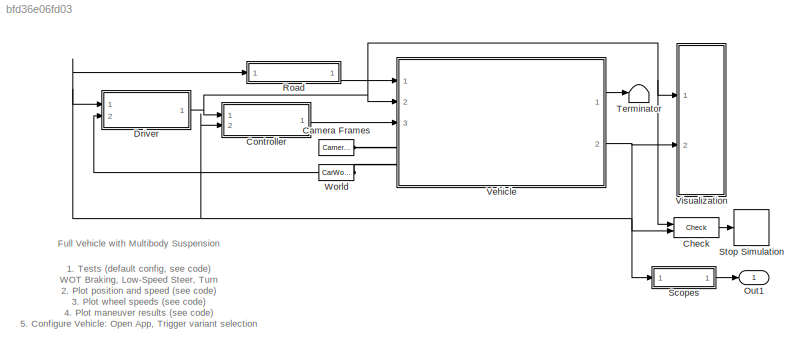
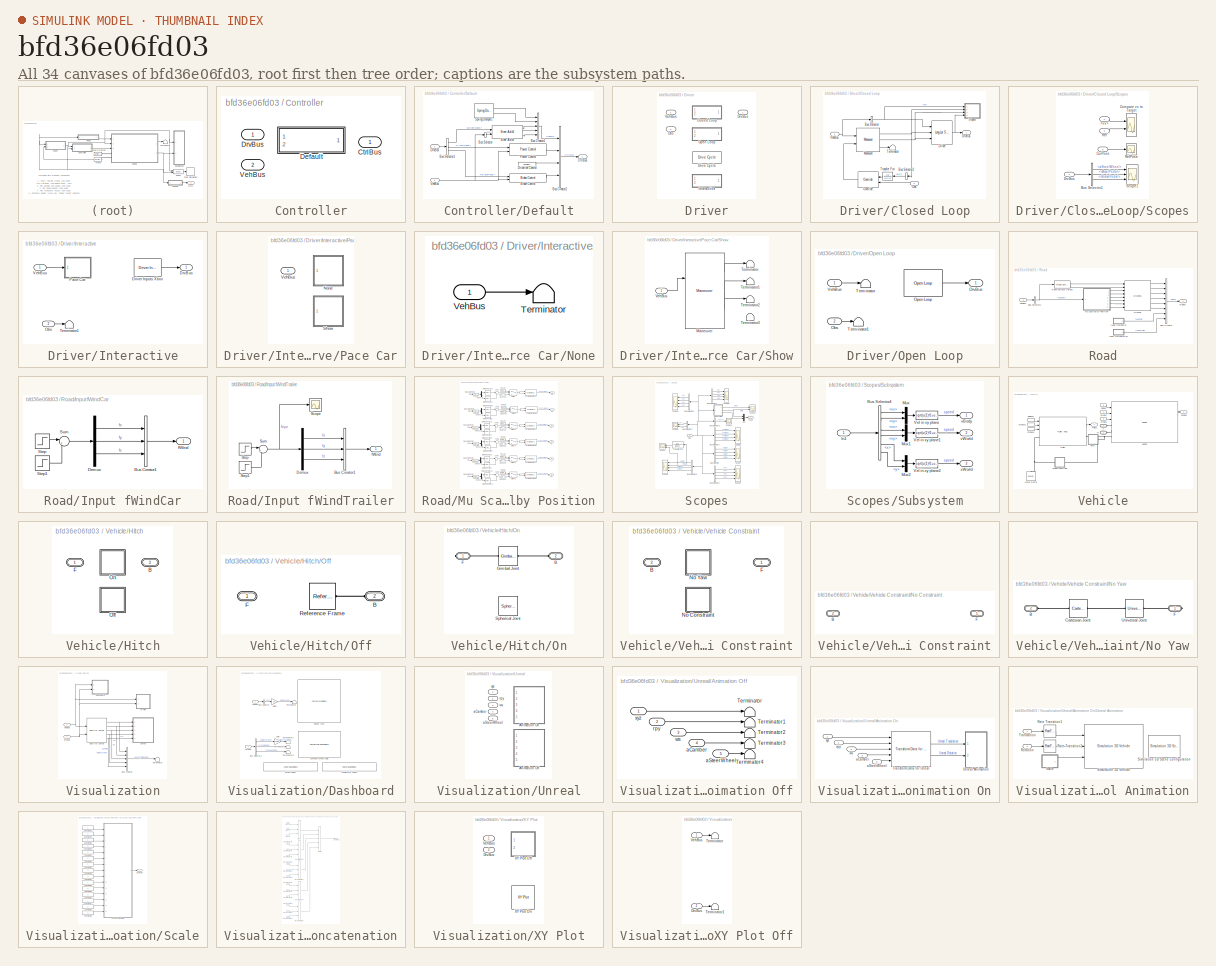
[diagram: thumbnail index - all 34 canvases of the model, root first then tree order]
MODEL slx_bfd36e06fd03
KIND model
CONFIG AbsTol = 1e-3
CONFIG EnableMultiTasking = on
CONFIG FixedStep = auto
CONFIG InitFcn = sm_car_config_camera;\nVehicle = sm_car_vehcfg_checkConfig(Vehicle);\nsm_car_check_tire_model(bdroot);
CONFIG MaxStep = 0.4
CONFIG MinStep = auto
CONFIG PostLoadFcn = set_param([bdroot '/Vehicle'],'popup_trailer','On')\nwarning('off','sm:sli:setup:compile:LocalSolverNotSupported')\nsm_car_config_maneuver(bdroot,'WOT Braking');\nsm_car_config_vehicle(bdroot);\nsm_car_config_logging(bdroot);
CONFIG PreLoadFcn = disp('Loading default data for 3-axle vehicle and 2-axle trailer')\nif verLessThan('matlab', '9.11')\n    load Vehicle_Axle3_008\n    Vehicle = Vehicle_Axle3_008;\n    load Trailer_Axle2_000\n    Trailer = Trailer_Axle2_000;\nelse\n    load Vehicle_Axle3_019\n    Vehicle = Vehicle_Axle3_019;\n    load Trailer_Axle2_022\n    Trailer = Trailer_Axle2_022;\nend\n\ndisp('Turning off MFEval warnings...')\ndisp('Solve...<+663ch>
CONFIG RelTol = 1e-3
CONFIG SampleTimeConstraint = Unconstrained
CONFIG SolverName = ode23t
CONFIG StartFcn = tic;
CONFIG StartTime = 0.0
CONFIG StopFcn = Elapsed_Sim_Time = toc;\n% disp(['Elapsed Sim Time = ' num2str(Elapsed_Sim_Time)]);
CONFIG StopTime = 40
BLOCK [Reference] Camera Frames  REF=Camera_Frame_Definitions/Camera Frames
  Ports = [0, 0, 0, 0, 0, 0, 1]
  SourceBlock = Camera_Frame_Definitions/Camera Frames
  SourceType = Camera Frame Definitions
BLOCK [Reference] Check  REF=sm_car_lib/Maneuver/Check  (lib defined in slx_05426f0848b6, slx_5dc2867fb1c9)
  Ports = [2, 1]
  SourceBlock = sm_car_lib/Maneuver/Check
BLOCK [SubSystem] Controller
  AttributesFormatString = %<popup_control>
  LabelModeActiveChoice = Default
  Ports = [2, 1]
  RequestExecContextInheritance = off
  Variant = on
  VariantControl = Variant1
  VariantControlMode = label
BLOCK [Outport] Controller/ CtrlBus
  VectorParamsAs1DForOutWhenUnconnected = off
BLOCK [SubSystem] Controller/Default
  Ports = [2, 1]
  RequestExecContextInheritance = off
  VariantControl = Default
BLOCK [Reference] Controller/Default/Brake Control  REF=sm_car_lib/Control/Brake Control  (lib defined in slx_05426f0848b6, slx_5dc2867fb1c9)
  AttributesFormatString = %<ActiveVariant>
  Ports = [2, 1]
  SourceBlock = sm_car_lib/Control/Brake Control
BLOCK [BusCreator] Controller/Default/Bus Creator1
  DisplayOption = bar
  InheritFromInputs = on
  Inputs = 5
  Ports = [5, 1]
BLOCK [BusCreator] Controller/Default/Bus Creator2
  DisplayOption = bar
  InheritFromInputs = on
  Inputs = 4
  Ports = [4, 1]
BLOCK [BusSelector] Controller/Default/Bus Selector
  OutputSignals = Chassis.Body.CG.vx
  Ports = [1, 1]
BLOCK [BusSelector] Controller/Default/Bus Selector1
  OutputSignals = aSteerWheel,rAccelPedal,rBrakePedal
  Ports = [1, 3]
BLOCK [Outport] Controller/Default/CtrlBus
  VectorParamsAs1DForOutWhenUnconnected = off
BLOCK [Reference] Controller/Default/Driveline Control  REF=sm_car_lib/Control/Driveline Control  (lib defined in slx_05426f0848b6, slx_5dc2867fb1c9)
  Ports = [0, 1]
  SourceBlock = sm_car_lib/Control/Driveline Control
  SourceType = SubSystem
BLOCK [Inport] Controller/Default/DrvBus
BLOCK [Reference] Controller/Default/Power Control  REF=sm_car_lib/Control/Power Control  (lib defined in slx_05426f0848b6, slx_5dc2867fb1c9)
  Ports = [2, 1]
  SourceBlock = sm_car_lib/Control/Power Control
BLOCK [Reference] Controller/Default/Spring Damper1  REF=sm_car_lib/Inputs/Control Bus Axle3/Spring Damper  (lib defined in slx_05426f0848b6, slx_5dc2867fb1c9)
  Ports = [0, 2]
  SourceBlock = sm_car_lib/Inputs/Control Bus Axle3/Spring Damper
  SourceType = SubSystem
BLOCK [Reference] Controller/Default/Steer Axle3  REF=sm_car_lib/Control/Steer Axle3  (lib defined in slx_05426f0848b6, slx_5dc2867fb1c9)
  Ports = [2, 3]
  SourceBlock = sm_car_lib/Control/Steer Axle3
BLOCK [Inport] Controller/Default/VehBus
  Port = 2
BLOCK [Inport] Controller/DrvBus 
BLOCK [Inport] Controller/VehBus 
  Port = 2
BLOCK [SubSystem] Driver
  AttributesFormatString = %<popup_driver_type>
  LabelModeActiveChoice = Open_Loop
  Ports = [2, 1]
  RequestExecContextInheritance = off
  Variant = on
  VariantControl = Variant1
  VariantControlMode = label
BLOCK [Outport] Driver/ DrvBus
  VectorParamsAs1DForOutWhenUnconnected = off
BLOCK [SubSystem] Driver/Closed Loop
  Ports = [2, 1]
  RequestExecContextInheritance = off
  VariantControl = Closed_Loop
BLOCK [BusSelector] Driver/Closed Loop/Bus Selector
  OutputSignals = Chassis.Body.CG.vx
  Ports = [1, 1]
BLOCK [BusSelector] Driver/Closed Loop/Bus Selector2
  NameLocation = top
  OutputSignals = dist
  Ports = [1, 1]
BLOCK [Reference] Driver/Closed Loop/Driver  REF=Driver_Long_Lat_Stanley/Long Lat Stanley
  Ports = [3, 1]
  SourceBlock = Driver_Long_Lat_Stanley/Long Lat Stanley
BLOCK [Outport] Driver/Closed Loop/DrvBus
  VectorParamsAs1DForOutWhenUnconnected = off
BLOCK [Reference] Driver/Closed Loop/Maneuver  REF=Maneuver_Get_Pose/Maneuver
  Ports = [2, 3]
  SourceBlock = Maneuver_Get_Pose/Maneuver
BLOCK [Inport] Driver/Closed Loop/Obs
  Port = 2
BLOCK [Reference] Driver/Closed Loop/Override  REF=sm_car_lib/Environment/Override  (lib defined in slx_05426f0848b6, slx_5dc2867fb1c9)
  AttributesFormatString = %<LabelModeActiveChoice>
  Ports = [2, 1]
  SourceBlock = sm_car_lib/Environment/Override
BLOCK [SubSystem] Driver/Closed Loop/Scopes
  Ports = [4]
  RequestExecContextInheritance = off
BLOCK [Inport] Driver/Closed Loop/Scopes/<vx>
BLOCK [BusSelector] Driver/Closed Loop/Scopes/Bus Selector1
  OutputSignals = aSteerWheel,rAccelPedal,rBrakePedal
  Ports = [1, 3]
BLOCK [Scope] Driver/Closed Loop/Scopes/Compare vx to Target
  Floating = off
  NumInputPorts = 2
  Ports = [2]
  ScopeSpecificationString = Simulink.scopes.TimeScopeBlockCfg('CurrentConfiguration', extmgr.ConfigurationSet(extmgr.Configuration('Core','General UI',true),extmgr.Configuration('Core','Source UI',true),extmgr.Configuration('Sources','WiredSimulink',true,'DataLoggingVariableName','ScopeData1'),extmgr.Configuration('Visuals','Time Domain',true,'SerializedDisplays',{struct('MinYLimReal','-326.96749','MaxYLimReal','577.70683','...<+1421ch>
BLOCK [Inport] Driver/Closed Loop/Scopes/CurPose
  Port = 3
BLOCK [Inport] Driver/Closed Loop/Scopes/DrvBus
  Port = 4
BLOCK [Inport] Driver/Closed Loop/Scopes/Ref
  Port = 2
BLOCK [Scope] Driver/Closed Loop/Scopes/RefPose
  Floating = off
  NumInputPorts = 1
  Ports = [1]
  ScopeSpecificationString = Simulink.scopes.TimeScopeBlockCfg('CurrentConfiguration', extmgr.ConfigurationSet(extmgr.Configuration('Core','General UI',true),extmgr.Configuration('Core','Source UI',true),extmgr.Configuration('Sources','WiredSimulink',true,'DataLoggingVariableName','ScopeData1'),extmgr.Configuration('Visuals','Time Domain',true,'SerializedDisplays',{struct('MinYLimReal','-598.75829','MaxYLimReal','469.37365','...<+1811ch>
BLOCK [Scope] Driver/Closed Loop/Scopes/Scope1
  Floating = off
  NumInputPorts = 3
  Ports = [3]
  ScopeSpecificationString = Simulink.scopes.TimeScopeBlockCfg('CurrentConfiguration', extmgr.ConfigurationSet(extmgr.Configuration('Core','General UI',true),extmgr.Configuration('Core','Source UI',true),extmgr.Configuration('Sources','WiredSimulink',true,'DataLoggingVariableName','ScopeData2'),extmgr.Configuration('Visuals','Time Domain',true,'SerializedDisplays',{struct('MinYLimReal','-0.7946','MaxYLimReal','0.14953','YLabe...<+2803ch>
BLOCK [Terminator] Driver/Closed Loop/Terminator
BLOCK [TransferFcn] Driver/Closed Loop/Transfer Fcn
  Denominator = [0.1 1]
BLOCK [Inport] Driver/Closed Loop/VehBus
BLOCK [Reference] Driver/Drive Cycle  REF=Driver_Drive_Cycle/Drive Cycle
  Ports = [2, 1]
  SourceBlock = Driver_Drive_Cycle/Drive Cycle
  SourceType = SubSystem
BLOCK [SubSystem] Driver/Interactive
  AttributesFormatString = Pace Car: %<popup_pace_car>
  Ports = [2, 1]
  RequestExecContextInheritance = off
  VariantControl = Interactive
BLOCK [Reference] Driver/Interactive/Driver Inputs Xbox  REF=Driver_Gamepad_Xbox/Gamepad Xbox/Driver Inputs Xbox
  Ports = [0, 1]
  SourceBlock = Driver_Gamepad_Xbox/Gamepad Xbox/Driver Inputs Xbox
  SourceType = SubSystem
BLOCK [Outport] Driver/Interactive/DrvBus
  VectorParamsAs1DForOutWhenUnconnected = off
BLOCK [Inport] Driver/Interactive/Obs
  Port = 2
BLOCK [SubSystem] Driver/Interactive/Pace Car
  AttributesFormatString = %<popup_pace_car>
  LabelModeActiveChoice = None
  Ports = [1]
  RequestExecContextInheritance = off
  Variant = on
  VariantControl = Variant1
  VariantControlMode = label
BLOCK [SubSystem] Driver/Interactive/Pace Car/None
  Ports = [1]
  RequestExecContextInheritance = off
  VariantControl = None
BLOCK [Terminator] Driver/Interactive/Pace Car/None/Terminator
BLOCK [Inport] Driver/Interactive/Pace Car/None/VehBus 
BLOCK [SubSystem] Driver/Interactive/Pace Car/Show
  Ports = [1]
  RequestExecContextInheritance = off
  VariantControl = Show
BLOCK [Reference] Driver/Interactive/Pace Car/Show/Maneuver  REF=Maneuver_Get_Pose/Maneuver
  Ports = [2, 3]
  SourceBlock = Maneuver_Get_Pose/Maneuver
BLOCK [Terminator] Driver/Interactive/Pace Car/Show/Terminator
BLOCK [Terminator] Driver/Interactive/Pace Car/Show/Terminator1
BLOCK [Terminator] Driver/Interactive/Pace Car/Show/Terminator2
BLOCK [Terminator] Driver/Interactive/Pace Car/Show/Terminator3
BLOCK [Inport] Driver/Interactive/Pace Car/Show/VehBus 
BLOCK [Inport] Driver/Interactive/Pace Car/VehBus 
BLOCK [Terminator] Driver/Interactive/Terminator1
BLOCK [Inport] Driver/Interactive/VehBus
BLOCK [Inport] Driver/Obs
  Port = 2
BLOCK [SubSystem] Driver/Open Loop
  Ports = [2, 1]
  RequestExecContextInheritance = off
  VariantControl = Open_Loop
BLOCK [Outport] Driver/Open Loop/DrvBus
  VectorParamsAs1DForOutWhenUnconnected = off
BLOCK [Inport] Driver/Open Loop/Obs
  Port = 2
BLOCK [Reference] Driver/Open Loop/Open Loop  REF=Driver_Open_Loop/Open Loop
  Ports = [0, 1]
  SourceBlock = Driver_Open_Loop/Open Loop
BLOCK [Terminator] Driver/Open Loop/Terminator
BLOCK [Terminator] Driver/Open Loop/Terminator1
BLOCK [Inport] Driver/Open Loop/VehBus
BLOCK [Inport] Driver/VehBus 
BLOCK [Outport] Out1
  VectorParamsAs1DForOutWhenUnconnected = off
BLOCK [SubSystem] Road
  NameLocation = top
  Ports = [1, 1]
  RequestExecContextInheritance = off
BLOCK [BusCreator] Road/Bus Creator
  DisplayOption = bar
  InheritFromInputs = on
  Inputs = 8
  Ports = [8, 1]
BLOCK [BusSelector] Road/Bus Selector1
  OutputSignals = Chassis
  Ports = [1, 1]
BLOCK [Reference] Road/Ground  REF=sm_car_lib/Tires/Ground1  (lib defined in slx_05426f0848b6, slx_5dc2867fb1c9)
  Ports = [8, 6]
  SourceBlock = sm_car_lib/Tires/Ground1
  SourceType = SubSystem
BLOCK [SubSystem] Road/Input fWindCar
  Ports = [0, 1]
  RequestExecContextInheritance = off
BLOCK [BusCreator] Road/Input fWindCar/Bus Creator1
  DisplayOption = bar
  InheritFromInputs = on
  Inputs = 3
  Ports = [3, 1]
BLOCK [Demux] Road/Input fWindCar/Demux
  Outputs = 3
  Ports = [1, 3]
BLOCK [Step] Road/Input fWindCar/Step
  After = fWind
  SampleTime = 0
  Time = dWind
BLOCK [Step] Road/Input fWindCar/Step1
  After = fWind
  SampleTime = 0
  Time = dWind+tWind
BLOCK [Sum] Road/Input fWindCar/Sum
  Inputs = |+-
  Ports = [2, 1]
BLOCK [Outport] Road/Input fWindCar/fWind
  VectorParamsAs1DForOutWhenUnconnected = off
BLOCK [SubSystem] Road/Input fWindTrailer
  Ports = [0, 1]
  RequestExecContextInheritance = off
BLOCK [BusCreator] Road/Input fWindTrailer/Bus Creator1
  DisplayOption = bar
  InheritFromInputs = on
  Inputs = 3
  Ports = [3, 1]
BLOCK [Demux] Road/Input fWindTrailer/Demux
  Outputs = 3
  Ports = [1, 3]
BLOCK [Scope] Road/Input fWindTrailer/Scope
  Floating = off
  NumInputPorts = 1
  Ports = [1]
  ScopeSpecificationString = Simulink.scopes.TimeScopeBlockCfg('CurrentConfiguration', extmgr.ConfigurationSet(extmgr.Configuration('Core','General UI',true),extmgr.Configuration('Core','Source UI',true),extmgr.Configuration('Sources','WiredSimulink',true,'DataLoggingVariableName','ScopeData1'),extmgr.Configuration('Visuals','Time Domain',true,'SerializedDisplays',{struct('MinYLimReal','-1.00000','MaxYLimReal','1.00000','YLab...<+1438ch>
BLOCK [Step] Road/Input fWindTrailer/Step
  After = fWind
  SampleTime = 0
  Time = dWind
BLOCK [Step] Road/Input fWindTrailer/Step1
  After = fWind
  SampleTime = 0
  Time = dWind+tWind
BLOCK [Sum] Road/Input fWindTrailer/Sum
  Inputs = |+-
  Ports = [2, 1]
BLOCK [Outport] Road/Input fWindTrailer/fWind
  VectorParamsAs1DForOutWhenUnconnected = off
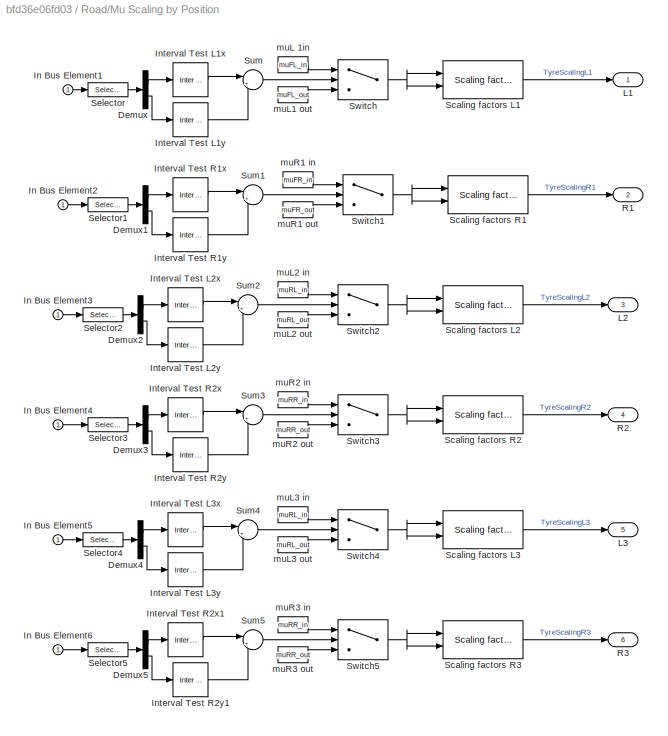
BLOCK [SubSystem] Road/Mu Scaling by Position
  Ports = [1, 6]
  RequestExecContextInheritance = off
BLOCK [Demux] Road/Mu Scaling by Position/Demux
  Outputs = 2
  Ports = [1, 2]
BLOCK [Demux] Road/Mu Scaling by Position/Demux1
  Outputs = 2
  Ports = [1, 2]
BLOCK [Demux] Road/Mu Scaling by Position/Demux2
  Outputs = 2
  Ports = [1, 2]
BLOCK [Demux] Road/Mu Scaling by Position/Demux3
  Outputs = 2
  Ports = [1, 2]
BLOCK [Demux] Road/Mu Scaling by Position/Demux4
  Outputs = 2
  Ports = [1, 2]
BLOCK [Demux] Road/Mu Scaling by Position/Demux5
  Outputs = 2
  Ports = [1, 2]
BLOCK [Inport] Road/Mu Scaling by Position/In Bus Element1
BLOCK [Inport] Road/Mu Scaling by Position/In Bus Element2
BLOCK [Inport] Road/Mu Scaling by Position/In Bus Element3
BLOCK [Inport] Road/Mu Scaling by Position/In Bus Element4
BLOCK [Inport] Road/Mu Scaling by Position/In Bus Element5
BLOCK [Inport] Road/Mu Scaling by Position/In Bus Element6
BLOCK [Reference] Road/Mu Scaling by Position/Interval Test L1x  REF=simulink/Logic and Bit
Operations/Interval Test
  NameLocation = top
  Ports = [1, 1]
  SourceBlock = simulink/Logic and Bit\nOperations/Interval Test
  SourceProductBaseCode = SL
  SourceType = Interval Test
BLOCK [Reference] Road/Mu Scaling by Position/Interval Test L1y  REF=simulink/Logic and Bit
Operations/Interval Test
  Ports = [1, 1]
  SourceBlock = simulink/Logic and Bit\nOperations/Interval Test
  SourceProductBaseCode = SL
  SourceType = Interval Test
BLOCK [Reference] Road/Mu Scaling by Position/Interval Test L2x  REF=simulink/Logic and Bit
Operations/Interval Test
  NameLocation = top
  Ports = [1, 1]
  SourceBlock = simulink/Logic and Bit\nOperations/Interval Test
  SourceProductBaseCode = SL
  SourceType = Interval Test
BLOCK [Reference] Road/Mu Scaling by Position/Interval Test L2y  REF=simulink/Logic and Bit
Operations/Interval Test
  Ports = [1, 1]
  SourceBlock = simulink/Logic and Bit\nOperations/Interval Test
  SourceProductBaseCode = SL
  SourceType = Interval Test
BLOCK [Reference] Road/Mu Scaling by Position/Interval Test L3x  REF=simulink/Logic and Bit
Operations/Interval Test
  NameLocation = top
  Ports = [1, 1]
  SourceBlock = simulink/Logic and Bit\nOperations/Interval Test
  SourceProductBaseCode = SL
  SourceType = Interval Test
BLOCK [Reference] Road/Mu Scaling by Position/Interval Test L3y  REF=simulink/Logic and Bit
Operations/Interval Test
  Ports = [1, 1]
  SourceBlock = simulink/Logic and Bit\nOperations/Interval Test
  SourceProductBaseCode = SL
  SourceType = Interval Test
BLOCK [Reference] Road/Mu Scaling by Position/Interval Test R1x  REF=simulink/Logic and Bit
Operations/Interval Test
  NameLocation = top
  Ports = [1, 1]
  SourceBlock = simulink/Logic and Bit\nOperations/Interval Test
  SourceProductBaseCode = SL
  SourceType = Interval Test
BLOCK [Reference] Road/Mu Scaling by Position/Interval Test R1y  REF=simulink/Logic and Bit
Operations/Interval Test
  Ports = [1, 1]
  SourceBlock = simulink/Logic and Bit\nOperations/Interval Test
  SourceProductBaseCode = SL
  SourceType = Interval Test
BLOCK [Reference] Road/Mu Scaling by Position/Interval Test R2x  REF=simulink/Logic and Bit
Operations/Interval Test
  NameLocation = top
  Ports = [1, 1]
  SourceBlock = simulink/Logic and Bit\nOperations/Interval Test
  SourceProductBaseCode = SL
  SourceType = Interval Test
BLOCK [Reference] Road/Mu Scaling by Position/Interval Test R2x1  REF=simulink/Logic and Bit
Operations/Interval Test
  NameLocation = top
  Ports = [1, 1]
  SourceBlock = simulink/Logic and Bit\nOperations/Interval Test
  SourceProductBaseCode = SL
  SourceType = Interval Test
BLOCK [Reference] Road/Mu Scaling by Position/Interval Test R2y  REF=simulink/Logic and Bit
Operations/Interval Test
  Ports = [1, 1]
  SourceBlock = simulink/Logic and Bit\nOperations/Interval Test
  SourceProductBaseCode = SL
  SourceType = Interval Test
BLOCK [Reference] Road/Mu Scaling by Position/Interval Test R2y1  REF=simulink/Logic and Bit
Operations/Interval Test
  Ports = [1, 1]
  SourceBlock = simulink/Logic and Bit\nOperations/Interval Test
  SourceProductBaseCode = SL
  SourceType = Interval Test
BLOCK [Outport] Road/Mu Scaling by Position/L1
  VectorParamsAs1DForOutWhenUnconnected = off
BLOCK [Outport] Road/Mu Scaling by Position/L2
  Port = 3
  VectorParamsAs1DForOutWhenUnconnected = off
BLOCK [Outport] Road/Mu Scaling by Position/L3
  Port = 5
  VectorParamsAs1DForOutWhenUnconnected = off
BLOCK [Outport] Road/Mu Scaling by Position/R1
  Port = 2
  VectorParamsAs1DForOutWhenUnconnected = off
BLOCK [Outport] Road/Mu Scaling by Position/R2
  Port = 4
  VectorParamsAs1DForOutWhenUnconnected = off
BLOCK [Outport] Road/Mu Scaling by Position/R3
  Port = 6
  VectorParamsAs1DForOutWhenUnconnected = off
BLOCK [Reference] Road/Mu Scaling by Position/Scaling factors L1  REF=sm_car_lib/Tires/Scaling factors 4  (lib defined in slx_05426f0848b6, slx_5dc2867fb1c9)
  Ports = [2, 1]
  SourceBlock = sm_car_lib/Tires/Scaling factors 4
BLOCK [Reference] Road/Mu Scaling by Position/Scaling factors L2  REF=sm_car_lib/Tires/Scaling factors 4  (lib defined in slx_05426f0848b6, slx_5dc2867fb1c9)
  Ports = [2, 1]
  SourceBlock = sm_car_lib/Tires/Scaling factors 4
BLOCK [Reference] Road/Mu Scaling by Position/Scaling factors L3  REF=sm_car_lib/Tires/Scaling factors 4  (lib defined in slx_05426f0848b6, slx_5dc2867fb1c9)
  Ports = [2, 1]
  SourceBlock = sm_car_lib/Tires/Scaling factors 4
BLOCK [Reference] Road/Mu Scaling by Position/Scaling factors R1  REF=sm_car_lib/Tires/Scaling factors 4  (lib defined in slx_05426f0848b6, slx_5dc2867fb1c9)
  Ports = [2, 1]
  SourceBlock = sm_car_lib/Tires/Scaling factors 4
BLOCK [Reference] Road/Mu Scaling by Position/Scaling factors R2  REF=sm_car_lib/Tires/Scaling factors 4  (lib defined in slx_05426f0848b6, slx_5dc2867fb1c9)
  Ports = [2, 1]
  SourceBlock = sm_car_lib/Tires/Scaling factors 4
BLOCK [Reference] Road/Mu Scaling by Position/Scaling factors R3  REF=sm_car_lib/Tires/Scaling factors 4  (lib defined in slx_05426f0848b6, slx_5dc2867fb1c9)
  Ports = [2, 1]
  SourceBlock = sm_car_lib/Tires/Scaling factors 4
BLOCK [Selector] Road/Mu Scaling by Position/Selector
  IndexOptions = Index vector (dialog)
  Indices = [1 2]
  InputPortWidth = 3
  OutputSizes = 1
  Ports = [1, 1]
BLOCK [Selector] Road/Mu Scaling by Position/Selector1
  IndexOptions = Index vector (dialog)
  Indices = [1 2]
  InputPortWidth = 3
  OutputSizes = 1
  Ports = [1, 1]
BLOCK [Selector] Road/Mu Scaling by Position/Selector2
  IndexOptions = Index vector (dialog)
  Indices = [1 2]
  InputPortWidth = 3
  OutputSizes = 1
  Ports = [1, 1]
BLOCK [Selector] Road/Mu Scaling by Position/Selector3
  IndexOptions = Index vector (dialog)
  Indices = [1 2]
  InputPortWidth = 3
  OutputSizes = 1
  Ports = [1, 1]
BLOCK [Selector] Road/Mu Scaling by Position/Selector4
  IndexOptions = Index vector (dialog)
  Indices = [1 2]
  InputPortWidth = 3
  OutputSizes = 1
  Ports = [1, 1]
BLOCK [Selector] Road/Mu Scaling by Position/Selector5
  IndexOptions = Index vector (dialog)
  Indices = [1 2]
  InputPortWidth = 3
  OutputSizes = 1
  Ports = [1, 1]
BLOCK [Sum] Road/Mu Scaling by Position/Sum
  Inputs = |++
  Ports = [2, 1]
BLOCK [Sum] Road/Mu Scaling by Position/Sum1
  Inputs = |++
  Ports = [2, 1]
BLOCK [Sum] Road/Mu Scaling by Position/Sum2
  Inputs = |++
  Ports = [2, 1]
BLOCK [Sum] Road/Mu Scaling by Position/Sum3
  Inputs = |++
  Ports = [2, 1]
BLOCK [Sum] Road/Mu Scaling by Position/Sum4
  Inputs = |++
  Ports = [2, 1]
BLOCK [Sum] Road/Mu Scaling by Position/Sum5
  Inputs = |++
  Ports = [2, 1]
BLOCK [Switch] Road/Mu Scaling by Position/Switch
  Criteria = u2 > Threshold
  InputSameDT = off
  SaturateOnIntegerOverflow = off
  Threshold = 1
  ZeroCross = off
BLOCK [Switch] Road/Mu Scaling by Position/Switch1
  Criteria = u2 > Threshold
  InputSameDT = off
  SaturateOnIntegerOverflow = off
  Threshold = 1
BLOCK [Switch] Road/Mu Scaling by Position/Switch2
  Criteria = u2 > Threshold
  InputSameDT = off
  SaturateOnIntegerOverflow = off
  Threshold = 1
BLOCK [Switch] Road/Mu Scaling by Position/Switch3
  Criteria = u2 > Threshold
  InputSameDT = off
  SaturateOnIntegerOverflow = off
  Threshold = 1
BLOCK [Switch] Road/Mu Scaling by Position/Switch4
  Criteria = u2 > Threshold
  InputSameDT = off
  SaturateOnIntegerOverflow = off
  Threshold = 1
BLOCK [Switch] Road/Mu Scaling by Position/Switch5
  Criteria = u2 > Threshold
  InputSameDT = off
  SaturateOnIntegerOverflow = off
  Threshold = 1
BLOCK [Constant] Road/Mu Scaling by Position/muL 1in
  NameLocation = top
  Value = muFL_in
BLOCK [Constant] Road/Mu Scaling by Position/muL1 out
  Value = muFL_out
BLOCK [Constant] Road/Mu Scaling by Position/muL2 in
  NameLocation = top
  Value = muRL_in
BLOCK [Constant] Road/Mu Scaling by Position/muL2 out
  Value = muRL_out
BLOCK [Constant] Road/Mu Scaling by Position/muL3 in
  NameLocation = top
  Value = muRL_in
BLOCK [Constant] Road/Mu Scaling by Position/muL3 out
  Value = muRL_out
BLOCK [Constant] Road/Mu Scaling by Position/muR1 in
  NameLocation = top
  Value = muFR_in
BLOCK [Constant] Road/Mu Scaling by Position/muR1 out
  Value = muFR_out
BLOCK [Constant] Road/Mu Scaling by Position/muR2 in
  NameLocation = top
  Value = muRR_in
BLOCK [Constant] Road/Mu Scaling by Position/muR2 out
  Value = muRR_out
BLOCK [Constant] Road/Mu Scaling by Position/muR3 in
  NameLocation = top
  Value = muRR_in
BLOCK [Constant] Road/Mu Scaling by Position/muR3 out
  Value = muRR_out
BLOCK [Outport] Road/RdBus
  VectorParamsAs1DForOutWhenUnconnected = off
BLOCK [Reference] Road/Road Surface Height  REF=sm_car_lib/Environment/Road Surface Profile Axle3  (lib defined in slx_05426f0848b6, slx_5dc2867fb1c9)
  AttributesFormatString = %<LabelModeActiveChoice>
  Ports = [1, 2]
  SourceBlock = sm_car_lib/Environment/Road Surface Profile Axle3
BLOCK [Inport] Road/VehBus
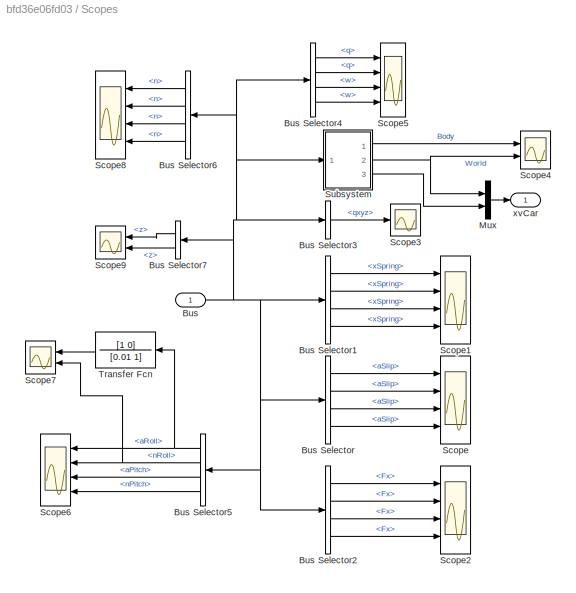
BLOCK [SubSystem] Scopes
  Ports = [1, 1]
  RequestExecContextInheritance = off
BLOCK [Inport] Scopes/Bus
BLOCK [BusSelector] Scopes/Bus Selector
  OutputSignals = Chassis.WhlL1.aSlip,Chassis.WhlR1.aSlip,Chassis.WhlL2.aSlip,Chassis.WhlR2.aSlip
  Ports = [1, 4]
BLOCK [BusSelector] Scopes/Bus Selector1
  OutputSignals = Chassis.Spring.L1.xSpring,Chassis.Spring.R1.xSpring,Chassis.Spring.L2.xSpring,Chassis.Spring.R2.xSpring
  Ports = [1, 4]
BLOCK [BusSelector] Scopes/Bus Selector2
  OutputSignals = Chassis.WhlL1.Fx,Chassis.WhlR1.Fx,Chassis.WhlL2.Fx,Chassis.WhlR2.Fx
  Ports = [1, 4]
BLOCK [BusSelector] Scopes/Bus Selector3
  OutputSignals = Chassis.WhlL1.qxyz
  Ports = [1, 1]
BLOCK [BusSelector] Scopes/Bus Selector4
  OutputSignals = Driveline.anDriveshaftL1.q,Driveline.anDriveshaftR1.q,Driveline.anDriveshaftL1.w,Driveline.anDriveshaftR1.w
  Ports = [1, 4]
BLOCK [BusSelector] Scopes/Bus Selector5
  NameLocation = top
  OutputSignals = Chassis.Body.CG.aRoll,Chassis.Body.CG.nRoll,Chassis.Body.CG.aPitch,Chassis.Body.CG.nPitch
  Ports = [1, 4]
BLOCK [BusSelector] Scopes/Bus Selector6
  OutputSignals = Chassis.WhlL1.n,Chassis.WhlR1.n,Chassis.WhlR2.n,Chassis.WhlL2.n
  Ports = [1, 4]
BLOCK [BusSelector] Scopes/Bus Selector7
  NameLocation = top
  OutputSignals = Chassis.Body.CG.z,World.z
  Ports = [1, 2]
BLOCK [Mux] Scopes/Mux
  DisplayOption = bar
  Inputs = 2
  Ports = [2, 1]
BLOCK [Scope] Scopes/Scope
  Floating = off
  NumInputPorts = 4
  Ports = [4]
  ScopeSpecificationString = Simulink.scopes.TimeScopeBlockCfg('CurrentConfiguration', extmgr.ConfigurationSet(extmgr.Configuration('Core','General UI',true),extmgr.Configuration('Core','Source UI',true),extmgr.Configuration('Sources','WiredSimulink',true,'DataLoggingVariableName','ScopeData1'),extmgr.Configuration('Visuals','Time Domain',true,'SerializedDisplays',{struct('MinYLimReal','-1.96294','MaxYLimReal','1.96118','YLab...<+1434ch>
BLOCK [Scope] Scopes/Scope1
  Floating = off
  NumInputPorts = 4
  Ports = [4]
  ScopeSpecificationString = Simulink.scopes.TimeScopeBlockCfg('CurrentConfiguration', extmgr.ConfigurationSet(extmgr.Configuration('Core','General UI',true),extmgr.Configuration('Core','Source UI',true),extmgr.Configuration('Sources','WiredSimulink',true,'DataLoggingVariableName','ScopeData1'),extmgr.Configuration('Visuals','Time Domain',true,'SerializedDisplays',{struct('MinYLimReal','0.59933','MaxYLimReal','0.77014','YLabe...<+1432ch>
BLOCK [Scope] Scopes/Scope2
  Floating = off
  NumInputPorts = 4
  Ports = [4]
  ScopeSpecificationString = Simulink.scopes.TimeScopeBlockCfg('CurrentConfiguration', extmgr.ConfigurationSet(extmgr.Configuration('Core','General UI',true),extmgr.Configuration('Core','Source UI',true),extmgr.Configuration('Sources','WiredSimulink',true,'DataLoggingVariableName','ScopeData1'),extmgr.Configuration('Visuals','Time Domain',true,'SerializedDisplays',{struct('MinYLimReal','-8724.32507','MaxYLimReal','8948.55481'...<+1462ch>
BLOCK [Scope] Scopes/Scope3
  Floating = off
  NumInputPorts = 1
  Ports = [1]
  ScopeSpecificationString = Simulink.scopes.TimeScopeBlockCfg('CurrentConfiguration', extmgr.ConfigurationSet(extmgr.Configuration('Core','General UI',true),extmgr.Configuration('Core','Source UI',true),extmgr.Configuration('Sources','WiredSimulink',true,'DataLoggingVariableName','ScopeData1'),extmgr.Configuration('Visuals','Time Domain',true,'SerializedDisplays',{struct('MinYLimReal','-86.18516','MaxYLimReal','775.52925','Y...<+1469ch>
BLOCK [Scope] Scopes/Scope4
  Floating = off
  NumInputPorts = 2
  Ports = [2]
  ScopeSpecificationString = Simulink.scopes.TimeScopeBlockCfg('CurrentConfiguration', extmgr.ConfigurationSet(extmgr.Configuration('Core','General UI',true),extmgr.Configuration('Core','Source UI',true),extmgr.Configuration('Sources','WiredSimulink',true,'DataLoggingVariableName','ScopeData1'),extmgr.Configuration('Visuals','Time Domain',true,'SerializedDisplays',{struct('MinYLimReal','-0.41471','MaxYLimReal','13.48994','YLa...<+1392ch>
BLOCK [Scope] Scopes/Scope5
  Floating = off
  NumInputPorts = 4
  Ports = [4]
  ScopeSpecificationString = Simulink.scopes.TimeScopeBlockCfg('CurrentConfiguration', extmgr.ConfigurationSet(extmgr.Configuration('Core','General UI',true),extmgr.Configuration('Core','Source UI',true),extmgr.Configuration('Sources','WiredSimulink',true,'DataLoggingVariableName','ScopeData1'),extmgr.Configuration('Visuals','Time Domain',true,'SerializedDisplays',{struct('MinYLimReal','-1.84919','MaxYLimReal','0.7981','YLabe...<+1432ch>
BLOCK [Scope] Scopes/Scope6
  Floating = off
  NumInputPorts = 4
  Ports = [4]
  ScopeSpecificationString = Simulink.scopes.TimeScopeBlockCfg('CurrentConfiguration', extmgr.ConfigurationSet(extmgr.Configuration('Core','General UI',true),extmgr.Configuration('Core','Source UI',true),extmgr.Configuration('Sources','WiredSimulink',true,'DataLoggingVariableName','ScopeData1'),extmgr.Configuration('Visuals','Time Domain',true,'SerializedDisplays',{struct('MinYLimReal','-0.000061','MaxYLimReal','0.000007','YL...<+3471ch>
BLOCK [Scope] Scopes/Scope7
  Floating = off
  NumInputPorts = 2
  Ports = [2]
  ScopeSpecificationString = Simulink.scopes.TimeScopeBlockCfg('CurrentConfiguration', extmgr.ConfigurationSet(extmgr.Configuration('Core','General UI',true),extmgr.Configuration('Core','Source UI',true),extmgr.Configuration('Sources','WiredSimulink',true,'DataLoggingVariableName','ScopeData2'),extmgr.Configuration('Visuals','Time Domain',true,'SerializedDisplays',{struct('MinYLimReal','-0.0000005','MaxYLimReal','0.0000049','...<+1475ch>
BLOCK [Scope] Scopes/Scope8
  Floating = off
  NumInputPorts = 4
  Ports = [4]
  ScopeSpecificationString = Simulink.scopes.TimeScopeBlockCfg('CurrentConfiguration', extmgr.ConfigurationSet(extmgr.Configuration('Core','General UI',true),extmgr.Configuration('Core','Source UI',true),extmgr.Configuration('Sources','WiredSimulink',true,'DataLoggingVariableName','ScopeData2'),extmgr.Configuration('Visuals','Time Domain',true,'SerializedDisplays',{struct('MinYLimReal','-3.30213','MaxYLimReal','31.49608','YLa...<+1603ch>
BLOCK [Scope] Scopes/Scope9
  Floating = off
  NumInputPorts = 2
  Ports = [2]
  ScopeSpecificationString = Simulink.scopes.TimeScopeBlockCfg('CurrentConfiguration', extmgr.ConfigurationSet(extmgr.Configuration('Core','General UI',true),extmgr.Configuration('Core','Source UI',true),extmgr.Configuration('Sources','WiredSimulink',true,'DataLoggingVariableName','ScopeData1'),extmgr.Configuration('Visuals','Time Domain',true,'SerializedDisplays',{struct('MinYLimReal','-6.57343','MaxYLimReal','5.04671','YLab...<+1413ch>
BLOCK [SubSystem] Scopes/Subsystem
  Ports = [1, 3]
  RequestExecContextInheritance = off
BLOCK [BusSelector] Scopes/Subsystem/Bus Selector4
  OutputSignals = Chassis.Body.CG.vx,Chassis.Body.CG.vy,World.vx,World.vy,World.x,World.y
  Ports = [1, 6]
BLOCK [Inport] Scopes/Subsystem/In1
BLOCK [Mux] Scopes/Subsystem/Mux
  DisplayOption = bar
  Inputs = 2
  Ports = [2, 1]
BLOCK [Mux] Scopes/Subsystem/Mux1
  DisplayOption = bar
  Inputs = 2
  Ports = [2, 1]
BLOCK [Mux] Scopes/Subsystem/Mux2
  DisplayOption = bar
  Inputs = 2
  Ports = [2, 1]
BLOCK [Fcn] Scopes/Subsystem/Vel in xy plane
  Expr = sqrt(u(1)^2+u(2)^2)
BLOCK [Fcn] Scopes/Subsystem/Vel in xy plane1
  Expr = sqrt(u(1)^2+u(2)^2)
BLOCK [Fcn] Scopes/Subsystem/Vel in xy plane2
  Expr = sqrt(u(1)^2+u(2)^2)
BLOCK [Outport] Scopes/Subsystem/vBody
  VectorParamsAs1DForOutWhenUnconnected = off
BLOCK [Outport] Scopes/Subsystem/vWorld
  Port = 2
  VectorParamsAs1DForOutWhenUnconnected = off
BLOCK [Outport] Scopes/Subsystem/xWorld
  Port = 3
  VectorParamsAs1DForOutWhenUnconnected = off
BLOCK [TransferFcn] Scopes/Transfer Fcn
  Denominator = [0.01 1]
  NameLocation = top
  Numerator = [1 0]
BLOCK [Outport] Scopes/xvCar
  VectorParamsAs1DForOutWhenUnconnected = off
BLOCK [Stop] Stop Simulation
BLOCK [Terminator] Terminator
BLOCK [SubSystem] Vehicle
  Ports = [3, 2, 0, 0, 0, 2]
  RequestExecContextInheritance = off
BLOCK [PMIOPort] Vehicle/C
  Side = Left
BLOCK [Inport] Vehicle/CtrlBus
  Port = 3
BLOCK [InportShadow] Vehicle/CtrlBus1
  Port = 3
BLOCK [Inport] Vehicle/DrvBus
  Port = 2
BLOCK [InportShadow] Vehicle/DrvBus1
  Port = 2
BLOCK [SubSystem] Vehicle/Hitch
  AttributesFormatString = %<LabelModeActiveChoice>
  LabelModeActiveChoice = On
  Ports = [0, 0, 0, 0, 0, 1, 1]
  RequestExecContextInheritance = off
  Variant = on
  VariantControl = Variant1
  VariantControlMode = label
BLOCK [PMIOPort] Vehicle/Hitch/ B
  Port = 2
  Side = Left
BLOCK [PMIOPort] Vehicle/Hitch/ F
  Side = Right
BLOCK [SubSystem] Vehicle/Hitch/Off
  Ports = [0, 0, 0, 0, 0, 1, 1]
  RequestExecContextInheritance = off
  VariantControl = Off
BLOCK [PMIOPort] Vehicle/Hitch/Off/B
  Port = 2
  Side = Left
BLOCK [PMIOPort] Vehicle/Hitch/Off/F
  Side = Right
BLOCK [Reference] Vehicle/Hitch/Off/Reference Frame  REF=sm_lib/Frames and
Transforms/Reference
Frame
  Ports = [0, 0, 0, 0, 0, 0, 1]
  SourceBlock = sm_lib/Frames and\nTransforms/Reference\nFrame
  SourceProductBaseCode = MS
  SourceType = Reference\nFrame
BLOCK [SubSystem] Vehicle/Hitch/On
  Ports = [0, 0, 0, 0, 0, 1, 1]
  RequestExecContextInheritance = off
  VariantControl = On
BLOCK [PMIOPort] Vehicle/Hitch/On/B
  Port = 2
  Side = Left
BLOCK [PMIOPort] Vehicle/Hitch/On/F
  Side = Right
BLOCK [Reference] Vehicle/Hitch/On/Gimbal Joint  REF=sm_lib/Joints/Gimbal Joint
  Ports = [0, 0, 0, 0, 0, 1, 1]
  SourceBlock = sm_lib/Joints/Gimbal Joint
  SourceProductBaseCode = MS
  SourceType = Gimbal Joint
BLOCK [Reference] Vehicle/Hitch/On/Spherical Joint  REF=sm_lib/Joints/Spherical
Joint
  Commented = on
  Ports = [0, 0, 0, 0, 0, 1, 1]
  SourceBlock = sm_lib/Joints/Spherical\nJoint
  SourceProductBaseCode = MS
  SourceType = Spherical\nJoint
BLOCK [Inport] Vehicle/RdBus
BLOCK [InportShadow] Vehicle/RdBus1
  NameLocation = top
BLOCK [Reference] Vehicle/Trailer  REF=Vehicle_Axle2/Trailer Axle2
  AttributesFormatString = %<LabelModeActiveChoice>
  Ports = [3, 1, 0, 0, 0, 3, 1]
  SourceBlock = Vehicle_Axle2/Trailer Axle2
  SourceType = Variants for Trailer
BLOCK [Outport] Vehicle/TrlBus
  VectorParamsAs1DForOutWhenUnconnected = off
BLOCK [Outport] Vehicle/VehBus
  Port = 2
  VectorParamsAs1DForOutWhenUnconnected = off
BLOCK [Reference] Vehicle/Vehicle  REF=Vehicle_Axle3/Vehicle
  Ports = [3, 1, 0, 0, 0, 3, 1]
  SourceBlock = Vehicle_Axle3/Vehicle
  SourceType = Vehicle with Three Axles
  Tag = PublishSubsystem
BLOCK [SubSystem] Vehicle/Vehicle Constraint
  AttributesFormatString = %<LabelModeActiveChoice>
  LabelModeActiveChoice = NoConstraint
  Ports = [0, 0, 0, 0, 0, 1, 1]
  RequestExecContextInheritance = off
  Variant = on
  VariantControl = Choice
  VariantControlMode = label
BLOCK [PMIOPort] Vehicle/Vehicle Constraint/B
  Port = 2
  Side = Left
BLOCK [PMIOPort] Vehicle/Vehicle Constraint/F
  Side = Right
BLOCK [SubSystem] Vehicle/Vehicle Constraint/No Constraint
  Ports = [0, 0, 0, 0, 0, 1, 1]
  RequestExecContextInheritance = off
  VariantControl = NoConstraint
BLOCK [PMIOPort] Vehicle/Vehicle Constraint/No Constraint/B
  Port = 2
  Side = Left
BLOCK [PMIOPort] Vehicle/Vehicle Constraint/No Constraint/F
  Side = Right
BLOCK [SubSystem] Vehicle/Vehicle Constraint/No Yaw
  Ports = [0, 0, 0, 0, 0, 1, 1]
  RequestExecContextInheritance = off
  VariantControl = NoYaw
BLOCK [PMIOPort] Vehicle/Vehicle Constraint/No Yaw/B
  Port = 2
  Side = Left
BLOCK [Reference] Vehicle/Vehicle Constraint/No Yaw/Cartesian Joint  REF=sm_lib/Joints/Cartesian
Joint
  Ports = [0, 0, 0, 0, 0, 1, 1]
  SourceBlock = sm_lib/Joints/Cartesian\nJoint
  SourceProductBaseCode = MS
  SourceType = Cartesian\nJoint
BLOCK [PMIOPort] Vehicle/Vehicle Constraint/No Yaw/F
  Side = Right
BLOCK [Reference] Vehicle/Vehicle Constraint/No Yaw/Universal Joint  REF=sm_lib/Joints/Universal
Joint
  Ports = [0, 0, 0, 0, 0, 1, 1]
  SourceBlock = sm_lib/Joints/Universal\nJoint
  SourceProductBaseCode = MS
  SourceType = Universal\nJoint
BLOCK [PMIOPort] Vehicle/W
  Port = 2
  Side = Left
BLOCK [Reference] Vehicle/World Frame  REF=sm_lib/Frames and
Transforms/World Frame
  NameLocation = right
  Ports = [0, 0, 0, 0, 0, 0, 1]
  SourceBlock = sm_lib/Frames and\nTransforms/World Frame
  SourceProductBaseCode = MS
  SourceType = World Frame
BLOCK [SubSystem] Visualization
  Ports = [2]
  RequestExecContextInheritance = off
BLOCK [BusCreator] Visualization/Bus Creator
  DisplayOption = bar
  InheritFromInputs = on
  Inputs = 5
  Ports = [5, 1]
BLOCK [SubSystem] Visualization/Dashboard
  Ports = [2]
  RequestExecContextInheritance = off
BLOCK [LinearGaugeBlock] Visualization/Dashboard/Accelerator Pedal
  LabelPosition = Hide
  ScaleMax = 1
BLOCK [LinearGaugeBlock] Visualization/Dashboard/Brake Pedal
  ScaleMax = 1
BLOCK [BusSelector] Visualization/Dashboard/Bus Selector
  OutputSignals = Chassis.Body.CG.vx
  Ports = [1, 1]
BLOCK [BusSelector] Visualization/Dashboard/Bus Selector2
  OutputSignals = aSteerWheel,rAccelPedal,rBrakePedal
  Ports = [1, 3]
BLOCK [Inport] Visualization/Dashboard/DrvBus
  Port = 2
BLOCK [Gain] Visualization/Dashboard/Gain
  Gain = 180/pi
BLOCK [Gain] Visualization/Dashboard/Gain1
  Gain = 3.6
BLOCK [CustomWebBlock] Visualization/Dashboard/Speed (kph)
  Configuration = {"components":[{"name":"CircularScaleComponent","settings":{"bounds":{"max":100,"min":0,"tickInterval":"auto"},"direction":"cw","flipLimits":0,"innerRadius":0.75,"internalTickHeightScaleFactor":1,"labelColor":[255,252,199],"labelFont":{"font":"Arial","fontSize":12},"labelRadius":0.36,"labelTransparency":1,"minorTickHeightScaleFactor":0.2,"needleImage":{"size":[1890,567],"src":"data:image\/svg+xml;...<+37051ch>
  LabelPosition = Hide
  ShowInitialText = on
BLOCK [SemiCircularGaugeBlock] Visualization/Dashboard/Steering Wheel Angle
  LabelPosition = Hide
  ScaleMax = 80
  ScaleMin = -80
  TickInterval = 20
BLOCK [Terminator] Visualization/Dashboard/Terminator
BLOCK [Terminator] Visualization/Dashboard/Terminator1
BLOCK [Terminator] Visualization/Dashboard/Terminator2
BLOCK [Terminator] Visualization/Dashboard/Terminator3
BLOCK [Inport] Visualization/Dashboard/VehBus
BLOCK [Reference] Visualization/Data for Unreal  REF=Vehicle_Visualization/Data for Unreal
  Ports = [2, 5]
  SourceBlock = Vehicle_Visualization/Data for Unreal
  SourceType = SubSystem
BLOCK [Inport] Visualization/DrvBus
BLOCK [Terminator] Visualization/Terminator
BLOCK [SubSystem] Visualization/Unreal
  AttributesFormatString = %<LabelModeActiveChoice>
  LabelModeActiveChoice = Off
  Ports = [5]
  RequestExecContextInheritance = off
  Variant = on
  VariantControl = Variant1
  VariantControlMode = label
BLOCK [SubSystem] Visualization/Unreal/Animation Off
  Ports = [5]
  RequestExecContextInheritance = off
  VariantControl = Off
BLOCK [Terminator] Visualization/Unreal/Animation Off/Terminator
BLOCK [Terminator] Visualization/Unreal/Animation Off/Terminator1
BLOCK [Terminator] Visualization/Unreal/Animation Off/Terminator2
BLOCK [Terminator] Visualization/Unreal/Animation Off/Terminator3
BLOCK [Terminator] Visualization/Unreal/Animation Off/Terminator4
BLOCK [Inport] Visualization/Unreal/Animation Off/aCamber
  Port = 4
BLOCK [Inport] Visualization/Unreal/Animation Off/aSteerWheel
  Port = 5
BLOCK [Inport] Visualization/Unreal/Animation Off/rpy
  Port = 2
BLOCK [Inport] Visualization/Unreal/Animation Off/ws
  Port = 3
BLOCK [Inport] Visualization/Unreal/Animation Off/xyz
BLOCK [SubSystem] Visualization/Unreal/Animation On
  Ports = [5]
  RequestExecContextInheritance = off
  VariantControl = On
BLOCK [Reference] Visualization/Unreal/Animation On/Transform Data for Uneal  REF=Vehicle_Visualization/Transform Data
for Unreal
  Ports = [5, 2]
  SourceBlock = Vehicle_Visualization/Transform Data\nfor Unreal
  SourceType = SubSystem
BLOCK [SubSystem] Visualization/Unreal/Animation On/Unreal Animation
  Ports = [2]
  RequestExecContextInheritance = off
BLOCK [RateTransition] Visualization/Unreal/Animation On/Unreal Animation/Rate Transition1
  Deterministic = off
  OutPortSampleTime = 0.03
BLOCK [RateTransition] Visualization/Unreal/Animation On/Unreal Animation/Rate Transition2
  Deterministic = off
  OutPortSampleTime = 0.03
BLOCK [Inport] Visualization/Unreal/Animation On/Unreal Animation/Rotation
  OutDataTypeStr = single
  Port = 2
  PortDimensions = [5,3]
BLOCK [SubSystem] Visualization/Unreal/Animation On/Unreal Animation/Scale
  Ports = [0, 1]
  RequestExecContextInheritance = off
BLOCK [Constant] Visualization/Unreal/Animation On/Unreal Animation/Scale/Constant1
  OutDataTypeStr = single
BLOCK [Constant] Visualization/Unreal/Animation On/Unreal Animation/Scale/Constant10
  OutDataTypeStr = single
BLOCK [Constant] Visualization/Unreal/Animation On/Unreal Animation/Scale/Constant11
  OutDataTypeStr = single
BLOCK [Constant] Visualization/Unreal/Animation On/Unreal Animation/Scale/Constant12
  OutDataTypeStr = single
BLOCK [Constant] Visualization/Unreal/Animation On/Unreal Animation/Scale/Constant17
  OutDataTypeStr = single
BLOCK [Constant] Visualization/Unreal/Animation On/Unreal Animation/Scale/Constant2
  OutDataTypeStr = single
BLOCK [Constant] Visualization/Unreal/Animation On/Unreal Animation/Scale/Constant3
  OutDataTypeStr = single
BLOCK [Constant] Visualization/Unreal/Animation On/Unreal Animation/Scale/Constant32
  OutDataTypeStr = single
BLOCK [Constant] Visualization/Unreal/Animation On/Unreal Animation/Scale/Constant33
  OutDataTypeStr = single
BLOCK [Constant] Visualization/Unreal/Animation On/Unreal Animation/Scale/Constant4
  OutDataTypeStr = single
BLOCK [Constant] Visualization/Unreal/Animation On/Unreal Animation/Scale/Constant5
  OutDataTypeStr = single
BLOCK [Constant] Visualization/Unreal/Animation On/Unreal Animation/Scale/Constant6
  OutDataTypeStr = single
BLOCK [Constant] Visualization/Unreal/Animation On/Unreal Animation/Scale/Constant7
  OutDataTypeStr = single
BLOCK [Constant] Visualization/Unreal/Animation On/Unreal Animation/Scale/Constant8
  OutDataTypeStr = single
BLOCK [Constant] Visualization/Unreal/Animation On/Unreal Animation/Scale/Constant9
  OutDataTypeStr = single
BLOCK [SubSystem] Visualization/Unreal/Animation On/Unreal Animation/Scale/PartConcatenation
  Ports = [15, 1]
  RequestExecContextInheritance = off
BLOCK [Concatenate] Visualization/Unreal/Animation On/Unreal Animation/Scale/PartConcatenation/AllParts
  Mode = Multidimensional array
  NumInputs = 5
  Ports = [5, 1]
BLOCK [Concatenate] Visualization/Unreal/Animation On/Unreal Animation/Scale/PartConcatenation/Body
  ConcatenateDimension = 2
  Mode = Multidimensional array
  NumInputs = 3
  Ports = [3, 1]
BLOCK [Inport] Visualization/Unreal/Animation On/Unreal Animation/Scale/PartConcatenation/BodyX
BLOCK [Inport] Visualization/Unreal/Animation On/Unreal Animation/Scale/PartConcatenation/BodyY
  Port = 2
BLOCK [Inport] Visualization/Unreal/Animation On/Unreal Animation/Scale/PartConcatenation/BodyZ
  Port = 3
BLOCK [Outport] Visualization/Unreal/Animation On/Unreal Animation/Scale/PartConcatenation/ConcatOut
  VectorParamsAs1DForOutWhenUnconnected = off
BLOCK [Concatenate] Visualization/Unreal/Animation On/Unreal Animation/Scale/PartConcatenation/WheelFrontLeft
  ConcatenateDimension = 2
  Mode = Multidimensional array
  NumInputs = 3
  Ports = [3, 1]
BLOCK [Inport] Visualization/Unreal/Animation On/Unreal Animation/Scale/PartConcatenation/WheelFrontLeftX
  Port = 4
BLOCK [Inport] Visualization/Unreal/Animation On/Unreal Animation/Scale/PartConcatenation/WheelFrontLeftY
  Port = 5
BLOCK [Inport] Visualization/Unreal/Animation On/Unreal Animation/Scale/PartConcatenation/WheelFrontLeftZ
  Port = 6
BLOCK [Concatenate] Visualization/Unreal/Animation On/Unreal Animation/Scale/PartConcatenation/WheelFrontRight
  ConcatenateDimension = 2
  Mode = Multidimensional array
  NumInputs = 3
  Ports = [3, 1]
BLOCK [Inport] Visualization/Unreal/Animation On/Unreal Animation/Scale/PartConcatenation/WheelFrontRightX
  Port = 7
BLOCK [Inport] Visualization/Unreal/Animation On/Unreal Animation/Scale/PartConcatenation/WheelFrontRightY
  Port = 8
BLOCK [Inport] Visualization/Unreal/Animation On/Unreal Animation/Scale/PartConcatenation/WheelFrontRightZ
  Port = 9
BLOCK [Concatenate] Visualization/Unreal/Animation On/Unreal Animation/Scale/PartConcatenation/WheelRearLeft
  ConcatenateDimension = 2
  Mode = Multidimensional array
  NumInputs = 3
  Ports = [3, 1]
BLOCK [Inport] Visualization/Unreal/Animation On/Unreal Animation/Scale/PartConcatenation/WheelRearLeftX
  Port = 10
BLOCK [Inport] Visualization/Unreal/Animation On/Unreal Animation/Scale/PartConcatenation/WheelRearLeftY
  Port = 11
BLOCK [Inport] Visualization/Unreal/Animation On/Unreal Animation/Scale/PartConcatenation/WheelRearLeftZ
  Port = 12
BLOCK [Concatenate] Visualization/Unreal/Animation On/Unreal Animation/Scale/PartConcatenation/WheelRearRight
  ConcatenateDimension = 2
  Mode = Multidimensional array
  NumInputs = 3
  Ports = [3, 1]
BLOCK [Inport] Visualization/Unreal/Animation On/Unreal Animation/Scale/PartConcatenation/WheelRearRightX
  Port = 13
BLOCK [Inport] Visualization/Unreal/Animation On/Unreal Animation/Scale/PartConcatenation/WheelRearRightY
  Port = 14
BLOCK [Inport] Visualization/Unreal/Animation On/Unreal Animation/Scale/PartConcatenation/WheelRearRightZ
  Port = 15
BLOCK [Outport] Visualization/Unreal/Animation On/Unreal Animation/Scale/ScaleOut
  VectorParamsAs1DForOutWhenUnconnected = off
BLOCK [Reference] Visualization/Unreal/Animation On/Unreal Animation/Simulation 3D Scene Configuration  REF=sim3dlib/Simulation 3D Scene Configuration
  Ports = []
  Priority = 0
  SourceBlock = sim3dlib/Simulation 3D Scene Configuration
  SourceProductBaseCode = VE,AE,DR,UV,VE
  SourceType = Simulation 3D Scene Configuration
BLOCK [Reference] Visualization/Unreal/Animation On/Unreal Animation/Simulation 3D Vehicle  REF=sim3dautolib/Simulation 3D Vehicle
  Ports = [3]
  Priority = -1
  SourceBlock = sim3dautolib/Simulation 3D Vehicle
  SourceProductBaseCode = VE,AE,DR,UV,VE
  SourceType = Simulation 3D Vehicle
BLOCK [Inport] Visualization/Unreal/Animation On/Unreal Animation/Translation
  OutDataTypeStr = single
  PortDimensions = [5,3]
BLOCK [Inport] Visualization/Unreal/Animation On/aCamber
  Port = 4
BLOCK [Inport] Visualization/Unreal/Animation On/aSteerWheel
  Port = 5
BLOCK [Inport] Visualization/Unreal/Animation On/rpy
  Port = 2
BLOCK [Inport] Visualization/Unreal/Animation On/ws
  Port = 3
BLOCK [Inport] Visualization/Unreal/Animation On/xyz
BLOCK [Inport] Visualization/Unreal/aCamber 
  Port = 4
BLOCK [Inport] Visualization/Unreal/aSteerWheel 
  Port = 5
BLOCK [Inport] Visualization/Unreal/rpy 
  Port = 2
BLOCK [Inport] Visualization/Unreal/ws 
  Port = 3
BLOCK [Inport] Visualization/Unreal/xyz 
BLOCK [Inport] Visualization/VehBus
  Port = 2
BLOCK [SubSystem] Visualization/XY Plot
  AttributesFormatString = %<LabelModeActiveChoice>
  LabelModeActiveChoice = Off
  Ports = [2]
  RequestExecContextInheritance = off
  Variant = on
  VariantControl = Variant1
  VariantControlMode = label
BLOCK [Inport] Visualization/XY Plot/DrvBus 
  Port = 2
BLOCK [Inport] Visualization/XY Plot/VehBus 
BLOCK [SubSystem] Visualization/XY Plot/XY Plot Off
  Ports = [2]
  RequestExecContextInheritance = off
  VariantControl = Off
BLOCK [Inport] Visualization/XY Plot/XY Plot Off/DrvBus
  Port = 2
BLOCK [Terminator] Visualization/XY Plot/XY Plot Off/Terminator
BLOCK [Terminator] Visualization/XY Plot/XY Plot Off/Terminator1
BLOCK [Inport] Visualization/XY Plot/XY Plot Off/VehBus
BLOCK [Reference] Visualization/XY Plot/XY Plot On  REF=Vehicle_Visualization/XY Plot
  Ports = [2]
  SourceBlock = Vehicle_Visualization/XY Plot
  SourceType = SubSystem
BLOCK [Reference] World  REF=sm_car_lib/Environment/CarWorldConfig  (lib defined in slx_05426f0848b6, slx_5dc2867fb1c9)
  AttributesFormatString = %<popup_scene>\nLocal Solver: %<UseLocalSolver>
  Ports = [0, 1, 0, 0, 0, 1]
  SourceBlock = sm_car_lib/Environment/CarWorldConfig
  SourceType = Environment
ANNOTATION (root): 1. Tests ( default config , see code ) WOT Braking , Low-Speed Steer , Turn 2. Plot position and speed ( see code ) 3. Plot wheel speeds ( see code ) 4. Plot maneuver results ( see code ) 5. Configure Vehicle: Open App , Trigger variant selection 6. View Data: Vehicle , Init , Maneuver , Driver 7. Solver: Variable-Step , Fixed Step ( see code ) 8. Explore simulation results using sscexplore
ANNOTATION (root): Full Vehicle with Multibody Suspension
LINE Check:1 -> Stop Simulation:1
LINE Controller/Default/Brake Control:1 -> Controller/Default/Bus Creator2:4
LINE Controller/Default/Bus Creator1:1 -> Controller/Default/Bus Creator2:1
LINE Controller/Default/Bus Creator2:1 -> Controller/Default/CtrlBus:1
LINE Controller/Default/Bus Selector1:1 -> Controller/Default/Steer Axle3:1
LINE Controller/Default/Bus Selector1:2 -> Controller/Default/Power Control:1
LINE Controller/Default/Bus Selector1:3 -> Controller/Default/Brake Control:1
LINE Controller/Default/Bus Selector:1 -> Controller/Default/Steer Axle3:2
LINE Controller/Default/Driveline Control:1 -> Controller/Default/Bus Creator2:3
LINE Controller/Default/DrvBus:1 -> Controller/Default/Bus Selector1:1
LINE Controller/Default/Power Control:1 -> Controller/Default/Bus Creator2:2
LINE Controller/Default/Spring Damper1:1 -> Controller/Default/Bus Creator1:1
LINE Controller/Default/Spring Damper1:2 -> Controller/Default/Bus Creator1:2
LINE Controller/Default/Steer Axle3:1 -> Controller/Default/Bus Creator1:3
LINE Controller/Default/Steer Axle3:2 -> Controller/Default/Bus Creator1:4
LINE Controller/Default/Steer Axle3:3 -> Controller/Default/Bus Creator1:5
NET Controller/Default/VehBus:1 -> Controller/Default/Brake Control:2, Controller/Default/Bus Selector:1, Controller/Default/Power Control:2
LINE Controller:1 -> Vehicle:3
LINE Driver/Closed Loop/Bus Selector2:1 -> Driver/Closed Loop/Transfer Fcn:1
NET Driver/Closed Loop/Bus Selector:1 -> Driver/Closed Loop/Driver:1, Driver/Closed Loop/Scopes:1
NET Driver/Closed Loop/Driver:1 -> Driver/Closed Loop/DrvBus:1, Driver/Closed Loop/Scopes:4
NET Driver/Closed Loop/Maneuver:1 -> Driver/Closed Loop/Bus Selector2:1, Driver/Closed Loop/Driver:2, Driver/Closed Loop/Scopes:2
NET Driver/Closed Loop/Maneuver:2 -> Driver/Closed Loop/Driver:3, Driver/Closed Loop/Scopes:3
LINE Driver/Closed Loop/Maneuver:3 -> Driver/Closed Loop/Terminator:1
LINE Driver/Closed Loop/Obs:1 -> Driver/Closed Loop/Override:2
LINE Driver/Closed Loop/Override:1 -> Driver/Closed Loop/Maneuver:2
LINE Driver/Closed Loop/Scopes/<vx>:1 -> Driver/Closed Loop/Scopes/Compare vx to Target:1
LINE Driver/Closed Loop/Scopes/Bus Selector1:1 -> Driver/Closed Loop/Scopes/Scope1:1
LINE Driver/Closed Loop/Scopes/Bus Selector1:2 -> Driver/Closed Loop/Scopes/Scope1:2
LINE Driver/Closed Loop/Scopes/Bus Selector1:3 -> Driver/Closed Loop/Scopes/Scope1:3
LINE Driver/Closed Loop/Scopes/CurPose:1 -> Driver/Closed Loop/Scopes/RefPose:1
LINE Driver/Closed Loop/Scopes/DrvBus:1 -> Driver/Closed Loop/Scopes/Bus Selector1:1
LINE Driver/Closed Loop/Scopes/Ref:1 -> Driver/Closed Loop/Scopes/Compare vx to Target:2
LINE Driver/Closed Loop/Transfer Fcn:1 -> Driver/Closed Loop/Override:1
NET Driver/Closed Loop/VehBus:1 -> Driver/Closed Loop/Bus Selector:1, Driver/Closed Loop/Maneuver:1
LINE Driver/Interactive/Driver Inputs Xbox:1 -> Driver/Interactive/DrvBus:1
LINE Driver/Interactive/Obs:1 -> Driver/Interactive/Terminator1:1
LINE Driver/Interactive/Pace Car/None/VehBus :1 -> Driver/Interactive/Pace Car/None/Terminator:1
LINE Driver/Interactive/Pace Car/Show/Maneuver:1 -> Driver/Interactive/Pace Car/Show/Terminator:1
LINE Driver/Interactive/Pace Car/Show/Maneuver:2 -> Driver/Interactive/Pace Car/Show/Terminator1:1
LINE Driver/Interactive/Pace Car/Show/Maneuver:3 -> Driver/Interactive/Pace Car/Show/Terminator2:1
LINE Driver/Interactive/Pace Car/Show/VehBus :1 -> Driver/Interactive/Pace Car/Show/Maneuver:1
LINE Driver/Interactive/VehBus:1 -> Driver/Interactive/Pace Car:1
LINE Driver/Open Loop/Obs:1 -> Driver/Open Loop/Terminator1:1
LINE Driver/Open Loop/Open Loop:1 -> Driver/Open Loop/DrvBus:1
LINE Driver/Open Loop/VehBus:1 -> Driver/Open Loop/Terminator:1
NET Driver:1 -> Check:1, Controller:1, Vehicle:2, Visualization:1
LINE Road/Bus Creator:1 -> Road/RdBus:1
NET Road/Bus Selector1:1 -> Road/Mu Scaling by Position:1, Road/Road Surface Height:1
LINE Road/Ground:1 -> Road/Bus Creator:1
LINE Road/Ground:2 -> Road/Bus Creator:2
LINE Road/Ground:3 -> Road/Bus Creator:3
LINE Road/Ground:4 -> Road/Bus Creator:4
LINE Road/Ground:5 -> Road/Bus Creator:5
LINE Road/Ground:6 -> Road/Bus Creator:6
LINE Road/Input fWindCar/Bus Creator1:1 -> Road/Input fWindCar/fWind:1
LINE Road/Input fWindCar/Demux:1 -> Road/Input fWindCar/Bus Creator1:1
LINE Road/Input fWindCar/Demux:2 -> Road/Input fWindCar/Bus Creator1:2
LINE Road/Input fWindCar/Demux:3 -> Road/Input fWindCar/Bus Creator1:3
LINE Road/Input fWindCar/Step1:1 -> Road/Input fWindCar/Sum:2
LINE Road/Input fWindCar/Step:1 -> Road/Input fWindCar/Sum:1
LINE Road/Input fWindCar/Sum:1 -> Road/Input fWindCar/Demux:1
LINE Road/Input fWindCar:1 -> Road/Bus Creator:7
LINE Road/Input fWindTrailer/Bus Creator1:1 -> Road/Input fWindTrailer/fWind:1
LINE Road/Input fWindTrailer/Demux:1 -> Road/Input fWindTrailer/Bus Creator1:1
LINE Road/Input fWindTrailer/Demux:2 -> Road/Input fWindTrailer/Bus Creator1:2
LINE Road/Input fWindTrailer/Demux:3 -> Road/Input fWindTrailer/Bus Creator1:3
LINE Road/Input fWindTrailer/Step1:1 -> Road/Input fWindTrailer/Sum:2
LINE Road/Input fWindTrailer/Step:1 -> Road/Input fWindTrailer/Sum:1
NET Road/Input fWindTrailer/Sum:1 -> Road/Input fWindTrailer/Demux:1, Road/Input fWindTrailer/Scope:1
LINE Road/Input fWindTrailer:1 -> Road/Bus Creator:8
LINE Road/Mu Scaling by Position/Demux1:1 -> Road/Mu Scaling by Position/Interval Test R1x:1
LINE Road/Mu Scaling by Position/Demux1:2 -> Road/Mu Scaling by Position/Interval Test R1y:1
LINE Road/Mu Scaling by Position/Demux2:1 -> Road/Mu Scaling by Position/Interval Test L2x:1
LINE Road/Mu Scaling by Position/Demux2:2 -> Road/Mu Scaling by Position/Interval Test L2y:1
LINE Road/Mu Scaling by Position/Demux3:1 -> Road/Mu Scaling by Position/Interval Test R2x:1
LINE Road/Mu Scaling by Position/Demux3:2 -> Road/Mu Scaling by Position/Interval Test R2y:1
LINE Road/Mu Scaling by Position/Demux4:1 -> Road/Mu Scaling by Position/Interval Test L3x:1
LINE Road/Mu Scaling by Position/Demux4:2 -> Road/Mu Scaling by Position/Interval Test L3y:1
LINE Road/Mu Scaling by Position/Demux5:1 -> Road/Mu Scaling by Position/Interval Test R2x1:1
LINE Road/Mu Scaling by Position/Demux5:2 -> Road/Mu Scaling by Position/Interval Test R2y1:1
LINE Road/Mu Scaling by Position/Demux:1 -> Road/Mu Scaling by Position/Interval Test L1x:1
LINE Road/Mu Scaling by Position/Demux:2 -> Road/Mu Scaling by Position/Interval Test L1y:1
LINE Road/Mu Scaling by Position/In Bus Element1:1 -> Road/Mu Scaling by Position/Selector:1
LINE Road/Mu Scaling by Position/In Bus Element2:1 -> Road/Mu Scaling by Position/Selector1:1
LINE Road/Mu Scaling by Position/In Bus Element3:1 -> Road/Mu Scaling by Position/Selector2:1
LINE Road/Mu Scaling by Position/In Bus Element4:1 -> Road/Mu Scaling by Position/Selector3:1
LINE Road/Mu Scaling by Position/In Bus Element5:1 -> Road/Mu Scaling by Position/Selector4:1
LINE Road/Mu Scaling by Position/In Bus Element6:1 -> Road/Mu Scaling by Position/Selector5:1
LINE Road/Mu Scaling by Position/Interval Test L1x:1 -> Road/Mu Scaling by Position/Sum:1
LINE Road/Mu Scaling by Position/Interval Test L1y:1 -> Road/Mu Scaling by Position/Sum:2
LINE Road/Mu Scaling by Position/Interval Test L2x:1 -> Road/Mu Scaling by Position/Sum2:1
LINE Road/Mu Scaling by Position/Interval Test L2y:1 -> Road/Mu Scaling by Position/Sum2:2
LINE Road/Mu Scaling by Position/Interval Test L3x:1 -> Road/Mu Scaling by Position/Sum4:1
LINE Road/Mu Scaling by Position/Interval Test L3y:1 -> Road/Mu Scaling by Position/Sum4:2
LINE Road/Mu Scaling by Position/Interval Test R1x:1 -> Road/Mu Scaling by Position/Sum1:1
LINE Road/Mu Scaling by Position/Interval Test R1y:1 -> Road/Mu Scaling by Position/Sum1:2
LINE Road/Mu Scaling by Position/Interval Test R2x1:1 -> Road/Mu Scaling by Position/Sum5:1
LINE Road/Mu Scaling by Position/Interval Test R2x:1 -> Road/Mu Scaling by Position/Sum3:1
LINE Road/Mu Scaling by Position/Interval Test R2y1:1 -> Road/Mu Scaling by Position/Sum5:2
LINE Road/Mu Scaling by Position/Interval Test R2y:1 -> Road/Mu Scaling by Position/Sum3:2
LINE Road/Mu Scaling by Position/Scaling factors L1:1 -> Road/Mu Scaling by Position/L1:1
LINE Road/Mu Scaling by Position/Scaling factors L2:1 -> Road/Mu Scaling by Position/L2:1
LINE Road/Mu Scaling by Position/Scaling factors L3:1 -> Road/Mu Scaling by Position/L3:1
LINE Road/Mu Scaling by Position/Scaling factors R1:1 -> Road/Mu Scaling by Position/R1:1
LINE Road/Mu Scaling by Position/Scaling factors R2:1 -> Road/Mu Scaling by Position/R2:1
LINE Road/Mu Scaling by Position/Scaling factors R3:1 -> Road/Mu Scaling by Position/R3:1
LINE Road/Mu Scaling by Position/Selector1:1 -> Road/Mu Scaling by Position/Demux1:1
LINE Road/Mu Scaling by Position/Selector2:1 -> Road/Mu Scaling by Position/Demux2:1
LINE Road/Mu Scaling by Position/Selector3:1 -> Road/Mu Scaling by Position/Demux3:1
LINE Road/Mu Scaling by Position/Selector4:1 -> Road/Mu Scaling by Position/Demux4:1
LINE Road/Mu Scaling by Position/Selector5:1 -> Road/Mu Scaling by Position/Demux5:1
LINE Road/Mu Scaling by Position/Selector:1 -> Road/Mu Scaling by Position/Demux:1
LINE Road/Mu Scaling by Position/Sum1:1 -> Road/Mu Scaling by Position/Switch1:2
LINE Road/Mu Scaling by Position/Sum2:1 -> Road/Mu Scaling by Position/Switch2:2
LINE Road/Mu Scaling by Position/Sum3:1 -> Road/Mu Scaling by Position/Switch3:2
LINE Road/Mu Scaling by Position/Sum4:1 -> Road/Mu Scaling by Position/Switch4:2
LINE Road/Mu Scaling by Position/Sum5:1 -> Road/Mu Scaling by Position/Switch5:2
LINE Road/Mu Scaling by Position/Sum:1 -> Road/Mu Scaling by Position/Switch:2
NET Road/Mu Scaling by Position/Switch1:1 -> Road/Mu Scaling by Position/Scaling factors R1:1, Road/Mu Scaling by Position/Scaling factors R1:2
NET Road/Mu Scaling by Position/Switch2:1 -> Road/Mu Scaling by Position/Scaling factors L2:1, Road/Mu Scaling by Position/Scaling factors L2:2
NET Road/Mu Scaling by Position/Switch3:1 -> Road/Mu Scaling by Position/Scaling factors R2:1, Road/Mu Scaling by Position/Scaling factors R2:2
NET Road/Mu Scaling by Position/Switch4:1 -> Road/Mu Scaling by Position/Scaling factors L3:1, Road/Mu Scaling by Position/Scaling factors L3:2
NET Road/Mu Scaling by Position/Switch5:1 -> Road/Mu Scaling by Position/Scaling factors R3:1, Road/Mu Scaling by Position/Scaling factors R3:2
NET Road/Mu Scaling by Position/Switch:1 -> Road/Mu Scaling by Position/Scaling factors L1:1, Road/Mu Scaling by Position/Scaling factors L1:2
LINE Road/Mu Scaling by Position/muL 1in:1 -> Road/Mu Scaling by Position/Switch:1
LINE Road/Mu Scaling by Position/muL1 out:1 -> Road/Mu Scaling by Position/Switch:3
LINE Road/Mu Scaling by Position/muL2 in:1 -> Road/Mu Scaling by Position/Switch2:1
LINE Road/Mu Scaling by Position/muL2 out:1 -> Road/Mu Scaling by Position/Switch2:3
LINE Road/Mu Scaling by Position/muL3 in:1 -> Road/Mu Scaling by Position/Switch4:1
LINE Road/Mu Scaling by Position/muL3 out:1 -> Road/Mu Scaling by Position/Switch4:3
LINE Road/Mu Scaling by Position/muR1 in:1 -> Road/Mu Scaling by Position/Switch1:1
LINE Road/Mu Scaling by Position/muR1 out:1 -> Road/Mu Scaling by Position/Switch1:3
LINE Road/Mu Scaling by Position/muR2 in:1 -> Road/Mu Scaling by Position/Switch3:1
LINE Road/Mu Scaling by Position/muR2 out:1 -> Road/Mu Scaling by Position/Switch3:3
LINE Road/Mu Scaling by Position/muR3 in:1 -> Road/Mu Scaling by Position/Switch5:1
LINE Road/Mu Scaling by Position/muR3 out:1 -> Road/Mu Scaling by Position/Switch5:3
LINE Road/Mu Scaling by Position:1 -> Road/Ground:3
LINE Road/Mu Scaling by Position:2 -> Road/Ground:4
LINE Road/Mu Scaling by Position:3 -> Road/Ground:5
LINE Road/Mu Scaling by Position:4 -> Road/Ground:6
LINE Road/Mu Scaling by Position:5 -> Road/Ground:7
LINE Road/Mu Scaling by Position:6 -> Road/Ground:8
LINE Road/Road Surface Height:1 -> Road/Ground:1
LINE Road/Road Surface Height:2 -> Road/Ground:2
LINE Road/VehBus:1 -> Road/Bus Selector1:1
LINE Road:1 -> Vehicle:1
LINE Scopes/Bus Selector1:1 -> Scopes/Scope1:1
LINE Scopes/Bus Selector1:2 -> Scopes/Scope1:2
LINE Scopes/Bus Selector1:3 -> Scopes/Scope1:3
LINE Scopes/Bus Selector1:4 -> Scopes/Scope1:4
LINE Scopes/Bus Selector2:1 -> Scopes/Scope2:1
LINE Scopes/Bus Selector2:2 -> Scopes/Scope2:2
LINE Scopes/Bus Selector2:3 -> Scopes/Scope2:3
LINE Scopes/Bus Selector2:4 -> Scopes/Scope2:4
LINE Scopes/Bus Selector3:1 -> Scopes/Scope3:1
LINE Scopes/Bus Selector4:1 -> Scopes/Scope5:1
LINE Scopes/Bus Selector4:2 -> Scopes/Scope5:2
LINE Scopes/Bus Selector4:3 -> Scopes/Scope5:3
LINE Scopes/Bus Selector4:4 -> Scopes/Scope5:4
NET Scopes/Bus Selector5:1 -> Scopes/Scope6:1, Scopes/Transfer Fcn:1
NET Scopes/Bus Selector5:2 -> Scopes/Scope6:2, Scopes/Scope7:2
LINE Scopes/Bus Selector5:3 -> Scopes/Scope6:3
LINE Scopes/Bus Selector5:4 -> Scopes/Scope6:4
LINE Scopes/Bus Selector6:1 -> Scopes/Scope8:1
LINE Scopes/Bus Selector6:2 -> Scopes/Scope8:2
LINE Scopes/Bus Selector6:3 -> Scopes/Scope8:3
LINE Scopes/Bus Selector6:4 -> Scopes/Scope8:4
LINE Scopes/Bus Selector7:1 -> Scopes/Scope9:1
LINE Scopes/Bus Selector7:2 -> Scopes/Scope9:2
LINE Scopes/Bus Selector:1 -> Scopes/Scope:1
LINE Scopes/Bus Selector:2 -> Scopes/Scope:2
LINE Scopes/Bus Selector:3 -> Scopes/Scope:3
LINE Scopes/Bus Selector:4 -> Scopes/Scope:4
NET Scopes/Bus:1 -> Scopes/Bus Selector1:1, Scopes/Bus Selector2:1, Scopes/Bus Selector3:1, Scopes/Bus Selector4:1, Scopes/Bus Selector5:1, Scopes/Bus Selector6:1, Scopes/Bus Selector7:1, Scopes/Bus Selector:1, Scopes/Subsystem:1
LINE Scopes/Mux:1 -> Scopes/xvCar:1
LINE Scopes/Subsystem/Bus Selector4:1 -> Scopes/Subsystem/Mux:1
LINE Scopes/Subsystem/Bus Selector4:2 -> Scopes/Subsystem/Mux:2
LINE Scopes/Subsystem/Bus Selector4:3 -> Scopes/Subsystem/Mux1:1
LINE Scopes/Subsystem/Bus Selector4:4 -> Scopes/Subsystem/Mux1:2
LINE Scopes/Subsystem/Bus Selector4:5 -> Scopes/Subsystem/Mux2:1
LINE Scopes/Subsystem/Bus Selector4:6 -> Scopes/Subsystem/Mux2:2
LINE Scopes/Subsystem/In1:1 -> Scopes/Subsystem/Bus Selector4:1
LINE Scopes/Subsystem/Mux1:1 -> Scopes/Subsystem/Vel in xy plane1:1
LINE Scopes/Subsystem/Mux2:1 -> Scopes/Subsystem/Vel in xy plane2:1
LINE Scopes/Subsystem/Mux:1 -> Scopes/Subsystem/Vel in xy plane:1
LINE Scopes/Subsystem/Vel in xy plane1:1 -> Scopes/Subsystem/vWorld:1
LINE Scopes/Subsystem/Vel in xy plane2:1 -> Scopes/Subsystem/xWorld:1
LINE Scopes/Subsystem/Vel in xy plane:1 -> Scopes/Subsystem/vBody:1
LINE Scopes/Subsystem:1 -> Scopes/Scope4:1
NET Scopes/Subsystem:2 -> Scopes/Mux:1, Scopes/Scope4:2
LINE Scopes/Subsystem:3 -> Scopes/Mux:2
LINE Scopes/Transfer Fcn:1 -> Scopes/Scope7:1
LINE Scopes:1 -> Out1:1
LINE Vehicle/CtrlBus1:1 -> Vehicle/Trailer:3
LINE Vehicle/CtrlBus:1 -> Vehicle/Vehicle:3
LINE Vehicle/DrvBus1:1 -> Vehicle/Trailer:2
LINE Vehicle/DrvBus:1 -> Vehicle/Vehicle:2
LINE Vehicle/RdBus1:1 -> Vehicle/Trailer:1
LINE Vehicle/RdBus:1 -> Vehicle/Vehicle:1
LINE Vehicle/Trailer:1 -> Vehicle/TrlBus:1
LINE Vehicle/Vehicle:1 -> Vehicle/VehBus:1
LINE Vehicle:1 -> Terminator:1
NET Vehicle:2 -> Check:2, Controller:2, Driver:1, Road:1, Scopes:1, Visualization:2
LINE Visualization/Bus Creator:1 -> Visualization/Terminator:1
LINE Visualization/Dashboard/Bus Selector2:1 -> Visualization/Dashboard/Gain:1
LINE Visualization/Dashboard/Bus Selector2:2 -> Visualization/Dashboard/Terminator2:1
LINE Visualization/Dashboard/Bus Selector2:3 -> Visualization/Dashboard/Terminator3:1
LINE Visualization/Dashboard/Bus Selector:1 -> Visualization/Dashboard/Gain1:1
LINE Visualization/Dashboard/DrvBus:1 -> Visualization/Dashboard/Bus Selector2:1
LINE Visualization/Dashboard/Gain1:1 -> Visualization/Dashboard/Terminator:1
LINE Visualization/Dashboard/Gain:1 -> Visualization/Dashboard/Terminator1:1
LINE Visualization/Dashboard/VehBus:1 -> Visualization/Dashboard/Bus Selector:1
NET Visualization/Data for Unreal:1 -> Visualization/Bus Creator:1, Visualization/Unreal:1
NET Visualization/Data for Unreal:2 -> Visualization/Bus Creator:2, Visualization/Unreal:2
NET Visualization/Data for Unreal:3 -> Visualization/Bus Creator:3, Visualization/Unreal:3
NET Visualization/Data for Unreal:4 -> Visualization/Bus Creator:4, Visualization/Unreal:4
NET Visualization/Data for Unreal:5 -> Visualization/Bus Creator:5, Visualization/Unreal:5
NET Visualization/DrvBus:1 -> Visualization/Dashboard:2, Visualization/Data for Unreal:2, Visualization/XY Plot:2
LINE Visualization/Unreal/Animation Off/aCamber:1 -> Visualization/Unreal/Animation Off/Terminator3:1
LINE Visualization/Unreal/Animation Off/aSteerWheel:1 -> Visualization/Unreal/Animation Off/Terminator4:1
LINE Visualization/Unreal/Animation Off/rpy:1 -> Visualization/Unreal/Animation Off/Terminator1:1
LINE Visualization/Unreal/Animation Off/ws:1 -> Visualization/Unreal/Animation Off/Terminator2:1
LINE Visualization/Unreal/Animation Off/xyz:1 -> Visualization/Unreal/Animation Off/Terminator:1
LINE Visualization/Unreal/Animation On/Transform Data for Uneal:1 -> Visualization/Unreal/Animation On/Unreal Animation:1
LINE Visualization/Unreal/Animation On/Transform Data for Uneal:2 -> Visualization/Unreal/Animation On/Unreal Animation:2
LINE Visualization/Unreal/Animation On/Unreal Animation/Rate Transition1:1 -> Visualization/Unreal/Animation On/Unreal Animation/Simulation 3D Vehicle:1
LINE Visualization/Unreal/Animation On/Unreal Animation/Rate Transition2:1 -> Visualization/Unreal/Animation On/Unreal Animation/Simulation 3D Vehicle:2
LINE Visualization/Unreal/Animation On/Unreal Animation/Rotation:1 -> Visualization/Unreal/Animation On/Unreal Animation/Rate Transition2:1
LINE Visualization/Unreal/Animation On/Unreal Animation/Scale/Constant10:1 -> Visualization/Unreal/Animation On/Unreal Animation/Scale/PartConcatenation:15
LINE Visualization/Unreal/Animation On/Unreal Animation/Scale/Constant11:1 -> Visualization/Unreal/Animation On/Unreal Animation/Scale/PartConcatenation:13
LINE Visualization/Unreal/Animation On/Unreal Animation/Scale/Constant12:1 -> Visualization/Unreal/Animation On/Unreal Animation/Scale/PartConcatenation:1
LINE Visualization/Unreal/Animation On/Unreal Animation/Scale/Constant17:1 -> Visualization/Unreal/Animation On/Unreal Animation/Scale/PartConcatenation:2
LINE Visualization/Unreal/Animation On/Unreal Animation/Scale/Constant1:1 -> Visualization/Unreal/Animation On/Unreal Animation/Scale/PartConcatenation:5
LINE Visualization/Unreal/Animation On/Unreal Animation/Scale/Constant2:1 -> Visualization/Unreal/Animation On/Unreal Animation/Scale/PartConcatenation:6
LINE Visualization/Unreal/Animation On/Unreal Animation/Scale/Constant32:1 -> Visualization/Unreal/Animation On/Unreal Animation/Scale/PartConcatenation:3
LINE Visualization/Unreal/Animation On/Unreal Animation/Scale/Constant33:1 -> Visualization/Unreal/Animation On/Unreal Animation/Scale/PartConcatenation:4
LINE Visualization/Unreal/Animation On/Unreal Animation/Scale/Constant3:1 -> Visualization/Unreal/Animation On/Unreal Animation/Scale/PartConcatenation:8
LINE Visualization/Unreal/Animation On/Unreal Animation/Scale/Constant4:1 -> Visualization/Unreal/Animation On/Unreal Animation/Scale/PartConcatenation:9
LINE Visualization/Unreal/Animation On/Unreal Animation/Scale/Constant5:1 -> Visualization/Unreal/Animation On/Unreal Animation/Scale/PartConcatenation:7
LINE Visualization/Unreal/Animation On/Unreal Animation/Scale/Constant6:1 -> Visualization/Unreal/Animation On/Unreal Animation/Scale/PartConcatenation:11
LINE Visualization/Unreal/Animation On/Unreal Animation/Scale/Constant7:1 -> Visualization/Unreal/Animation On/Unreal Animation/Scale/PartConcatenation:12
LINE Visualization/Unreal/Animation On/Unreal Animation/Scale/Constant8:1 -> Visualization/Unreal/Animation On/Unreal Animation/Scale/PartConcatenation:10
LINE Visualization/Unreal/Animation On/Unreal Animation/Scale/Constant9:1 -> Visualization/Unreal/Animation On/Unreal Animation/Scale/PartConcatenation:14
LINE Visualization/Unreal/Animation On/Unreal Animation/Scale/PartConcatenation/AllParts:1 -> Visualization/Unreal/Animation On/Unreal Animation/Scale/PartConcatenation/ConcatOut:1
LINE Visualization/Unreal/Animation On/Unreal Animation/Scale/PartConcatenation/Body:1 -> Visualization/Unreal/Animation On/Unreal Animation/Scale/PartConcatenation/AllParts:1
LINE Visualization/Unreal/Animation On/Unreal Animation/Scale/PartConcatenation/BodyX:1 -> Visualization/Unreal/Animation On/Unreal Animation/Scale/PartConcatenation/Body:1
LINE Visualization/Unreal/Animation On/Unreal Animation/Scale/PartConcatenation/BodyY:1 -> Visualization/Unreal/Animation On/Unreal Animation/Scale/PartConcatenation/Body:2
LINE Visualization/Unreal/Animation On/Unreal Animation/Scale/PartConcatenation/BodyZ:1 -> Visualization/Unreal/Animation On/Unreal Animation/Scale/PartConcatenation/Body:3
LINE Visualization/Unreal/Animation On/Unreal Animation/Scale/PartConcatenation/WheelFrontLeft:1 -> Visualization/Unreal/Animation On/Unreal Animation/Scale/PartConcatenation/AllParts:2
LINE Visualization/Unreal/Animation On/Unreal Animation/Scale/PartConcatenation/WheelFrontLeftX:1 -> Visualization/Unreal/Animation On/Unreal Animation/Scale/PartConcatenation/WheelFrontLeft:1
LINE Visualization/Unreal/Animation On/Unreal Animation/Scale/PartConcatenation/WheelFrontLeftY:1 -> Visualization/Unreal/Animation On/Unreal Animation/Scale/PartConcatenation/WheelFrontLeft:2
LINE Visualization/Unreal/Animation On/Unreal Animation/Scale/PartConcatenation/WheelFrontLeftZ:1 -> Visualization/Unreal/Animation On/Unreal Animation/Scale/PartConcatenation/WheelFrontLeft:3
LINE Visualization/Unreal/Animation On/Unreal Animation/Scale/PartConcatenation/WheelFrontRight:1 -> Visualization/Unreal/Animation On/Unreal Animation/Scale/PartConcatenation/AllParts:3
LINE Visualization/Unreal/Animation On/Unreal Animation/Scale/PartConcatenation/WheelFrontRightX:1 -> Visualization/Unreal/Animation On/Unreal Animation/Scale/PartConcatenation/WheelFrontRight:1
LINE Visualization/Unreal/Animation On/Unreal Animation/Scale/PartConcatenation/WheelFrontRightY:1 -> Visualization/Unreal/Animation On/Unreal Animation/Scale/PartConcatenation/WheelFrontRight:2
LINE Visualization/Unreal/Animation On/Unreal Animation/Scale/PartConcatenation/WheelFrontRightZ:1 -> Visualization/Unreal/Animation On/Unreal Animation/Scale/PartConcatenation/WheelFrontRight:3
LINE Visualization/Unreal/Animation On/Unreal Animation/Scale/PartConcatenation/WheelRearLeft:1 -> Visualization/Unreal/Animation On/Unreal Animation/Scale/PartConcatenation/AllParts:4
LINE Visualization/Unreal/Animation On/Unreal Animation/Scale/PartConcatenation/WheelRearLeftX:1 -> Visualization/Unreal/Animation On/Unreal Animation/Scale/PartConcatenation/WheelRearLeft:1
LINE Visualization/Unreal/Animation On/Unreal Animation/Scale/PartConcatenation/WheelRearLeftY:1 -> Visualization/Unreal/Animation On/Unreal Animation/Scale/PartConcatenation/WheelRearLeft:2
LINE Visualization/Unreal/Animation On/Unreal Animation/Scale/PartConcatenation/WheelRearLeftZ:1 -> Visualization/Unreal/Animation On/Unreal Animation/Scale/PartConcatenation/WheelRearLeft:3
LINE Visualization/Unreal/Animation On/Unreal Animation/Scale/PartConcatenation/WheelRearRight:1 -> Visualization/Unreal/Animation On/Unreal Animation/Scale/PartConcatenation/AllParts:5
LINE Visualization/Unreal/Animation On/Unreal Animation/Scale/PartConcatenation/WheelRearRightX:1 -> Visualization/Unreal/Animation On/Unreal Animation/Scale/PartConcatenation/WheelRearRight:1
LINE Visualization/Unreal/Animation On/Unreal Animation/Scale/PartConcatenation/WheelRearRightY:1 -> Visualization/Unreal/Animation On/Unreal Animation/Scale/PartConcatenation/WheelRearRight:2
LINE Visualization/Unreal/Animation On/Unreal Animation/Scale/PartConcatenation/WheelRearRightZ:1 -> Visualization/Unreal/Animation On/Unreal Animation/Scale/PartConcatenation/WheelRearRight:3
LINE Visualization/Unreal/Animation On/Unreal Animation/Scale/PartConcatenation:1 -> Visualization/Unreal/Animation On/Unreal Animation/Scale/ScaleOut:1
LINE Visualization/Unreal/Animation On/Unreal Animation/Scale:1 -> Visualization/Unreal/Animation On/Unreal Animation/Simulation 3D Vehicle:3
LINE Visualization/Unreal/Animation On/Unreal Animation/Translation:1 -> Visualization/Unreal/Animation On/Unreal Animation/Rate Transition1:1
LINE Visualization/Unreal/Animation On/aCamber:1 -> Visualization/Unreal/Animation On/Transform Data for Uneal:4
LINE Visualization/Unreal/Animation On/aSteerWheel:1 -> Visualization/Unreal/Animation On/Transform Data for Uneal:5
LINE Visualization/Unreal/Animation On/rpy:1 -> Visualization/Unreal/Animation On/Transform Data for Uneal:2
LINE Visualization/Unreal/Animation On/ws:1 -> Visualization/Unreal/Animation On/Transform Data for Uneal:3
LINE Visualization/Unreal/Animation On/xyz:1 -> Visualization/Unreal/Animation On/Transform Data for Uneal:1
NET Visualization/VehBus:1 -> Visualization/Dashboard:1, Visualization/Data for Unreal:1, Visualization/XY Plot:1
LINE Visualization/XY Plot/XY Plot Off/DrvBus:1 -> Visualization/XY Plot/XY Plot Off/Terminator1:1
LINE Visualization/XY Plot/XY Plot Off/VehBus:1 -> Visualization/XY Plot/XY Plot Off/Terminator:1
LINE World:1 -> Driver:2
PLINE Camera Frames:RConn1 -- Vehicle:LConn1
PLINE Vehicle/C:RConn1 -- Vehicle/Vehicle:LConn1
PLINE Vehicle/Hitch/Off/B:RConn1 -- Vehicle/Hitch/Off/Reference Frame:RConn1
PLINE Vehicle/Hitch/On/B:RConn1 -- Vehicle/Hitch/On/Gimbal Joint:LConn1
PLINE Vehicle/Hitch/On/F:RConn1 -- Vehicle/Hitch/On/Gimbal Joint:RConn1
PNET net1: Vehicle/Hitch:LConn1 -- Vehicle/Vehicle Constraint:RConn1 -- Vehicle/Vehicle:LConn3
PLINE Vehicle/Hitch:RConn1 -- Vehicle/Trailer:RConn1
PNET net2: Vehicle/Trailer:LConn2 -- Vehicle/Vehicle Constraint:LConn1 -- Vehicle/World Frame:RConn1
PLINE Vehicle/Vehicle Constraint/No Yaw/B:RConn1 -- Vehicle/Vehicle Constraint/No Yaw/Cartesian Joint:LConn1
PLINE Vehicle/Vehicle Constraint/No Yaw/Cartesian Joint:RConn1 -- Vehicle/Vehicle Constraint/No Yaw/Universal Joint:LConn1
PLINE Vehicle/Vehicle Constraint/No Yaw/F:RConn1 -- Vehicle/Vehicle Constraint/No Yaw/Universal Joint:RConn1
PLINE Vehicle/Vehicle:LConn2 -- Vehicle/W:RConn1
PLINE Vehicle:LConn2 -- World:LConn1
note: NET lines group one-source signal fan-out (src -> all destinations, sorted); 1:1 wires keep LINE; PNET lines group multi-terminal physical nets as a canonical sorted terminal list (undirected conserving connections); 2-terminal nets keep the pairwise PLINE form
